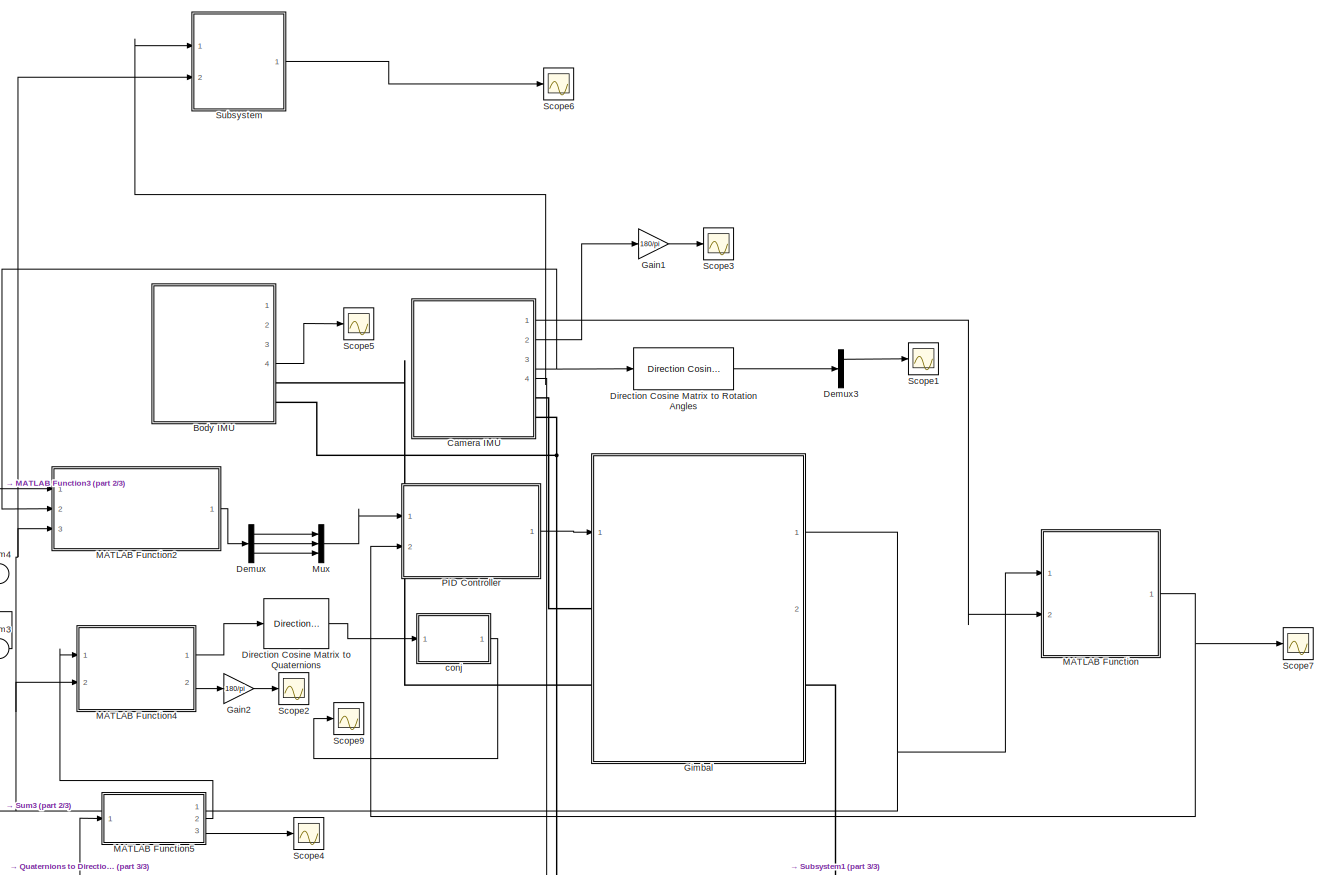
[diagram: root canvas - part 1/3, top center region]
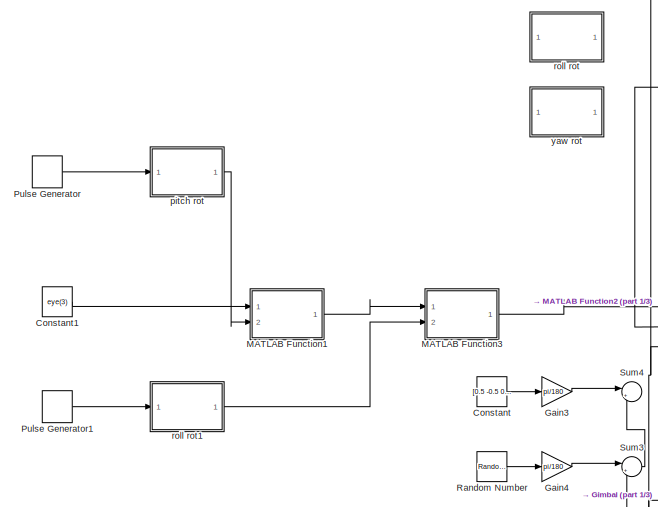
[diagram: root canvas - part 2/3, top left region]
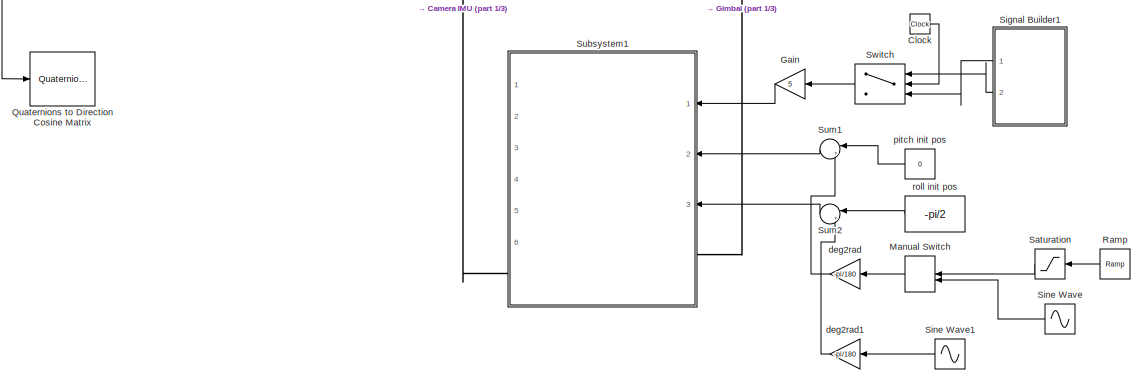
[diagram: root canvas - part 3/3, bottom center region]
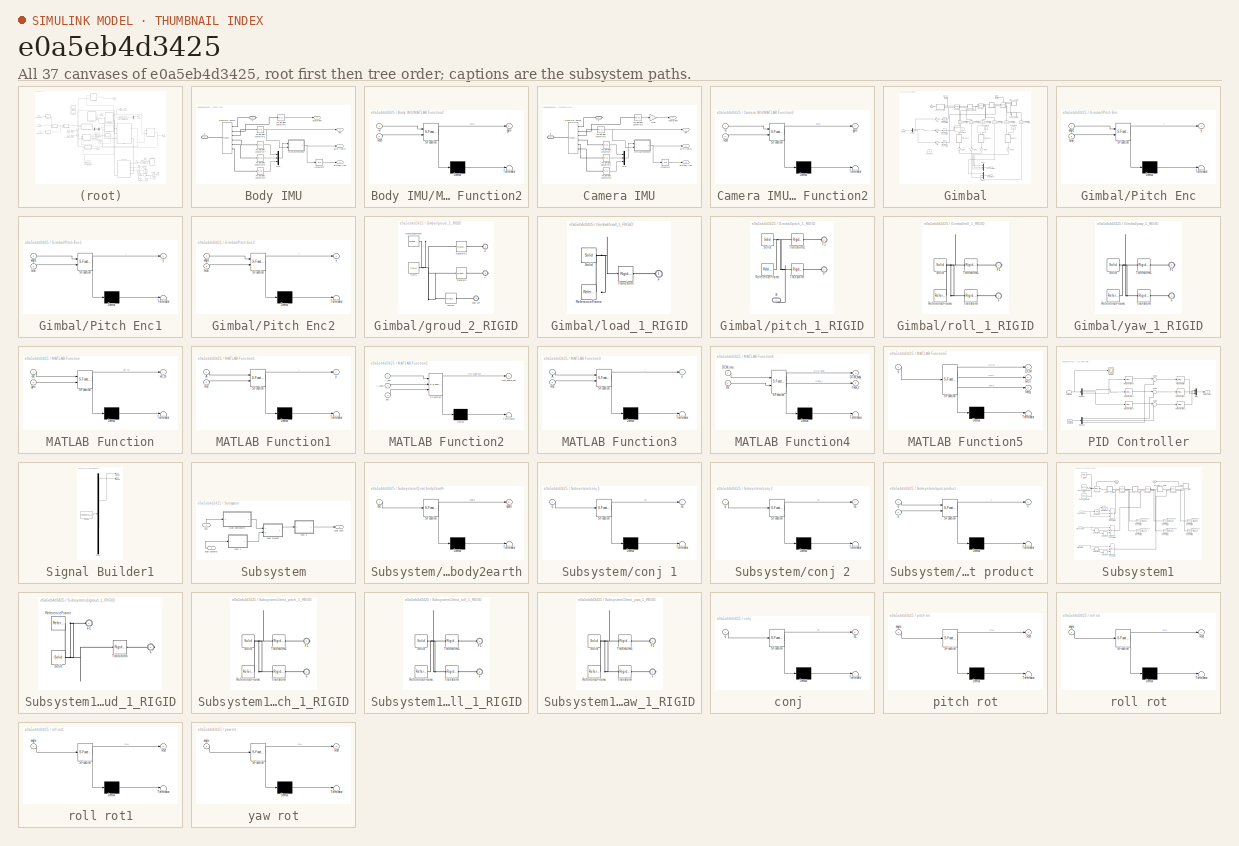
[diagram: thumbnail index - all 37 canvases of the model, root first then tree order]
MODEL slx_e0a5eb4d3425
KIND model
CONFIG AbsTol = auto
CONFIG EnableMultiTasking = on
CONFIG FixedStep = 0.001
CONFIG MaxStep = auto
CONFIG MinStep = auto
CONFIG RelTol = 1e-3
CONFIG SampleTimeConstraint = Unconstrained
CONFIG Solver = ode14x
CONFIG SolverName = ode14x
CONFIG StartTime = 0.0
CONFIG StopTime = 3
BLOCK [SubSystem] Body IMU
  Ports = [0, 4, 0, 0, 0, 0, 2]
  RequestExecContextInheritance = off
  Variant = off
BLOCK [PMIOPort] Body IMU/B
  Port = 2
  Side = Right
BLOCK [PMIOPort] Body IMU/F
  Port = 1
  Side = Right
BLOCK [Integrator] Body IMU/Integrator
  Ports = [1, 1]
BLOCK [SubSystem] Body IMU/MATLAB Function2
  ErrorFcn = Stateflow.Translate.translate
  PermitHierarchicalResolution = ExplicitOnly
  Ports = [2, 1]
  RequestExecContextInheritance = off
  SFBlockType = MATLAB Function
  TreatAsAtomicUnit = on
  Variant = off
BLOCK [Demux] Body IMU/MATLAB Function2/ Demux 
  Outputs = 1
  Ports = [1, 1]
BLOCK [S-Function] Body IMU/MATLAB Function2/ SFunction 
  EnableBusSupport = on
  FunctionName = sf_sfun
  PortCounts = [2 2]
  Ports = [2, 2]
  SFcnIsStateOwnerBlock = off
  SFunctionDeploymentMode = off
  Tag = Stateflow S-Function gimbal_test_2017_10_10 14
BLOCK [Terminator] Body IMU/MATLAB Function2/ Terminator 
BLOCK [Inport] Body IMU/MATLAB Function2/RM
  IconDisplay = Port number
  Port = 2
BLOCK [Outport] Body IMU/MATLAB Function2/gyro
  IconDisplay = Port number
BLOCK [Inport] Body IMU/MATLAB Function2/w
  IconDisplay = Port number
BLOCK [Mux] Body IMU/Mux
  DisplayOption = bar
  Inputs = 3
  Ports = [3, 1]
BLOCK [Reference] Body IMU/PS-Simulink Converter1  REF=nesl_utility/PS-Simulink
Converter
  Ports = [0, 1, 0, 0, 0, 1]
  SourceBlock = nesl_utility/PS-Simulink\nConverter
  SourceProductBaseCode = SS
  SourceProductName = Simscape
  SourceType = PS-Simulink\nConverter
BLOCK [Reference] Body IMU/PS-Simulink Converter6  REF=nesl_utility/PS-Simulink
Converter
  Ports = [0, 1, 0, 0, 0, 1]
  SourceBlock = nesl_utility/PS-Simulink\nConverter
  SourceProductBaseCode = SS
  SourceProductName = Simscape
  SourceType = PS-Simulink\nConverter
BLOCK [Reference] Body IMU/PS-Simulink Converter7  REF=nesl_utility/PS-Simulink
Converter
  Ports = [0, 1, 0, 0, 0, 1]
  SourceBlock = nesl_utility/PS-Simulink\nConverter
  SourceProductBaseCode = SS
  SourceProductName = Simscape
  SourceType = PS-Simulink\nConverter
BLOCK [Reference] Body IMU/PS-Simulink Converter8  REF=nesl_utility/PS-Simulink
Converter
  Ports = [0, 1, 0, 0, 0, 1]
  SourceBlock = nesl_utility/PS-Simulink\nConverter
  SourceProductBaseCode = SS
  SourceProductName = Simscape
  SourceType = PS-Simulink\nConverter
BLOCK [Reference] Body IMU/PS-Simulink Converter9  REF=nesl_utility/PS-Simulink
Converter
  Ports = [0, 1, 0, 0, 0, 1]
  SourceBlock = nesl_utility/PS-Simulink\nConverter
  SourceProductBaseCode = SS
  SourceProductName = Simscape
  SourceType = PS-Simulink\nConverter
BLOCK [Outport] Body IMU/RM
  IconDisplay = Port number
  Port = 3
BLOCK [Reference] Body IMU/Transform Sensor  REF=sm_lib/Frames and
Transforms/Transform
Sensor
  Ports = [0, 0, 0, 0, 0, 1, 6]
  SourceBlock = sm_lib/Frames and\nTransforms/Transform\nSensor
  SourceProductBaseCode = MS
  SourceProductName = Simscape Multibody
  SourceType = Transform\nSensor
BLOCK [Outport] Body IMU/attitude (rad)
  IconDisplay = Port number
  Port = 2
BLOCK [Outport] Body IMU/gyro (rad//s)
  IconDisplay = Port number
BLOCK [Outport] Body IMU/quaternion 
  IconDisplay = Port number
  Port = 4
BLOCK [SubSystem] Camera IMU
  Ports = [0, 4, 0, 0, 0, 0, 2]
  RequestExecContextInheritance = off
  Variant = off
BLOCK [PMIOPort] Camera IMU/B
  Port = 2
  Side = Right
BLOCK [PMIOPort] Camera IMU/F
  Port = 1
  Side = Right
BLOCK [Gain] Camera IMU/Gain
  Gain = -1
  OutDataTypeStr = Inherit: Inherit via internal rule
  ParamDataTypeStr = Inherit: Inherit via internal rule
  SaturateOnIntegerOverflow = off
BLOCK [Integrator] Camera IMU/Integrator
  Ports = [1, 1]
BLOCK [SubSystem] Camera IMU/MATLAB Function2
  ErrorFcn = Stateflow.Translate.translate
  PermitHierarchicalResolution = ExplicitOnly
  Ports = [2, 1]
  RequestExecContextInheritance = off
  SFBlockType = MATLAB Function
  TreatAsAtomicUnit = on
  Variant = off
BLOCK [Demux] Camera IMU/MATLAB Function2/ Demux 
  Outputs = 1
  Ports = [1, 1]
BLOCK [S-Function] Camera IMU/MATLAB Function2/ SFunction 
  EnableBusSupport = on
  FunctionName = sf_sfun
  PortCounts = [2 2]
  Ports = [2, 2]
  SFcnIsStateOwnerBlock = off
  SFunctionDeploymentMode = off
  Tag = Stateflow S-Function gimbal_test_2017_10_10 11
BLOCK [Terminator] Camera IMU/MATLAB Function2/ Terminator 
BLOCK [Inport] Camera IMU/MATLAB Function2/RM
  IconDisplay = Port number
  Port = 2
BLOCK [Outport] Camera IMU/MATLAB Function2/gyro
  IconDisplay = Port number
BLOCK [Inport] Camera IMU/MATLAB Function2/w
  IconDisplay = Port number
BLOCK [Mux] Camera IMU/Mux
  DisplayOption = bar
  Inputs = 3
  Ports = [3, 1]
BLOCK [Reference] Camera IMU/PS-Simulink Converter1  REF=nesl_utility/PS-Simulink
Converter
  Ports = [0, 1, 0, 0, 0, 1]
  SourceBlock = nesl_utility/PS-Simulink\nConverter
  SourceProductBaseCode = SS
  SourceProductName = Simscape
  SourceType = PS-Simulink\nConverter
BLOCK [Reference] Camera IMU/PS-Simulink Converter6  REF=nesl_utility/PS-Simulink
Converter
  Ports = [0, 1, 0, 0, 0, 1]
  SourceBlock = nesl_utility/PS-Simulink\nConverter
  SourceProductBaseCode = SS
  SourceProductName = Simscape
  SourceType = PS-Simulink\nConverter
BLOCK [Reference] Camera IMU/PS-Simulink Converter7  REF=nesl_utility/PS-Simulink
Converter
  Ports = [0, 1, 0, 0, 0, 1]
  SourceBlock = nesl_utility/PS-Simulink\nConverter
  SourceProductBaseCode = SS
  SourceProductName = Simscape
  SourceType = PS-Simulink\nConverter
BLOCK [Reference] Camera IMU/PS-Simulink Converter8  REF=nesl_utility/PS-Simulink
Converter
  Ports = [0, 1, 0, 0, 0, 1]
  SourceBlock = nesl_utility/PS-Simulink\nConverter
  SourceProductBaseCode = SS
  SourceProductName = Simscape
  SourceType = PS-Simulink\nConverter
BLOCK [Reference] Camera IMU/PS-Simulink Converter9  REF=nesl_utility/PS-Simulink
Converter
  Ports = [0, 1, 0, 0, 0, 1]
  SourceBlock = nesl_utility/PS-Simulink\nConverter
  SourceProductBaseCode = SS
  SourceProductName = Simscape
  SourceType = PS-Simulink\nConverter
BLOCK [Outport] Camera IMU/RM
  IconDisplay = Port number
  Port = 3
BLOCK [Reference] Camera IMU/Transform Sensor  REF=sm_lib/Frames and
Transforms/Transform
Sensor
  Ports = [0, 0, 0, 0, 0, 1, 6]
  SourceBlock = sm_lib/Frames and\nTransforms/Transform\nSensor
  SourceProductBaseCode = MS
  SourceProductName = Simscape Multibody
  SourceType = Transform\nSensor
BLOCK [Outport] Camera IMU/attitude (rad)
  IconDisplay = Port number
  Port = 2
BLOCK [Outport] Camera IMU/gyro (rad//s)
  IconDisplay = Port number
BLOCK [Outport] Camera IMU/quaternion 
  IconDisplay = Port number
  Port = 4
BLOCK [Clock] Clock
BLOCK [Constant] Constant
  Value = [0.5 -0.5 0.5]
BLOCK [Constant] Constant1
  Value = eye(3)
BLOCK [Demux] Demux
  DisplayOption = bar
  Outputs = 3
  Ports = [1, 3]
BLOCK [Demux] Demux3
  DisplayOption = bar
  Outputs = 3
  Ports = [1, 3]
BLOCK [Reference] Direction Cosine Matrix to Quaternions  REF=sharedtransform/Direction Cosine Matrix 
to Quaternions
  Ports = [1, 1]
  SourceBlock = sharedtransform/Direction Cosine Matrix \nto Quaternions
  SourceType = DCM2Quaternion
BLOCK [Reference] Direction Cosine Matrix to Rotation Angles  REF=sharedtransform/Direction Cosine Matrix
to Rotation Angles
  AttributesFormatString = Rotation Order: %<rotationOrder>
  Ports = [1, 1]
  SourceBlock = sharedtransform/Direction Cosine Matrix\nto Rotation Angles
  SourceType = DCM2Ang
BLOCK [Gain] Gain
  Gain = 5
  OutDataTypeStr = Inherit: Inherit via internal rule
  ParamDataTypeStr = Inherit: Inherit via internal rule
  SaturateOnIntegerOverflow = off
BLOCK [Gain] Gain1
  Gain = 180/pi
  OutDataTypeStr = Inherit: Inherit via internal rule
  ParamDataTypeStr = Inherit: Inherit via internal rule
  SaturateOnIntegerOverflow = off
BLOCK [Gain] Gain2
  Gain = 180/pi
  OutDataTypeStr = Inherit: Inherit via internal rule
  ParamDataTypeStr = Inherit: Inherit via internal rule
  SaturateOnIntegerOverflow = off
BLOCK [Gain] Gain3
  Gain = pi/180
  OutDataTypeStr = Inherit: Inherit via internal rule
  ParamDataTypeStr = Inherit: Inherit via internal rule
  SaturateOnIntegerOverflow = off
BLOCK [Gain] Gain4
  Gain = pi/180
  OutDataTypeStr = Inherit: Inherit via internal rule
  ParamDataTypeStr = Inherit: Inherit via internal rule
  SaturateOnIntegerOverflow = off
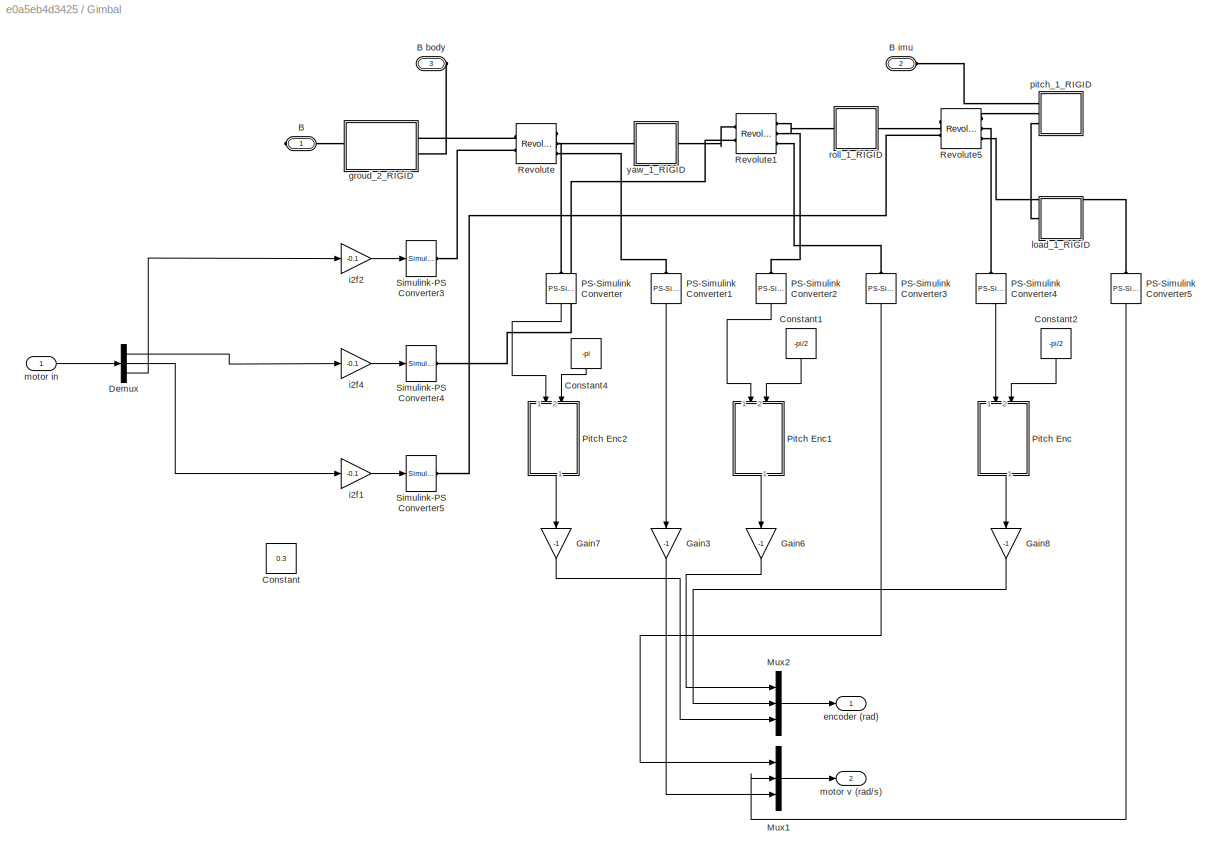
BLOCK [SubSystem] Gimbal
  Ports = [1, 2, 0, 0, 0, 2, 1]
  RequestExecContextInheritance = off
  Variant = off
BLOCK [PMIOPort] Gimbal/B
  Port = 1
  Side = Right
BLOCK [PMIOPort] Gimbal/B body
  Port = 3
  Side = Left
BLOCK [PMIOPort] Gimbal/B imu
  Port = 2
  Side = Left
BLOCK [Constant] Gimbal/Constant
  Value = 0.3
BLOCK [Constant] Gimbal/Constant1
  Value = -pi/2
BLOCK [Constant] Gimbal/Constant2
  Value = -pi/2
BLOCK [Constant] Gimbal/Constant4
  Value = -pi
BLOCK [Demux] Gimbal/Demux
  DisplayOption = bar
  Outputs = 3
  Ports = [1, 3]
BLOCK [Gain] Gimbal/Gain3
  Gain = -1
  OutDataTypeStr = Inherit: Inherit via internal rule
  ParamDataTypeStr = Inherit: Inherit via internal rule
  SaturateOnIntegerOverflow = off
BLOCK [Gain] Gimbal/Gain6
  Gain = -1
  OutDataTypeStr = Inherit: Inherit via internal rule
  ParamDataTypeStr = Inherit: Inherit via internal rule
  SaturateOnIntegerOverflow = off
BLOCK [Gain] Gimbal/Gain7
  Gain = -1
  OutDataTypeStr = Inherit: Inherit via internal rule
  ParamDataTypeStr = Inherit: Inherit via internal rule
  SaturateOnIntegerOverflow = off
BLOCK [Gain] Gimbal/Gain8
  Gain = -1
  OutDataTypeStr = Inherit: Inherit via internal rule
  ParamDataTypeStr = Inherit: Inherit via internal rule
  SaturateOnIntegerOverflow = off
BLOCK [Mux] Gimbal/Mux1
  DisplayOption = bar
  Inputs = 3
  Ports = [3, 1]
BLOCK [Mux] Gimbal/Mux2
  DisplayOption = bar
  Inputs = 3
  Ports = [3, 1]
BLOCK [Reference] Gimbal/PS-Simulink Converter  REF=nesl_utility/PS-Simulink
Converter
  Ports = [0, 1, 0, 0, 0, 1]
  SourceBlock = nesl_utility/PS-Simulink\nConverter
  SourceProductBaseCode = SS
  SourceProductName = Simscape
  SourceType = PS-Simulink\nConverter
BLOCK [Reference] Gimbal/PS-Simulink Converter1  REF=nesl_utility/PS-Simulink
Converter
  Ports = [0, 1, 0, 0, 0, 1]
  SourceBlock = nesl_utility/PS-Simulink\nConverter
  SourceProductBaseCode = SS
  SourceProductName = Simscape
  SourceType = PS-Simulink\nConverter
BLOCK [Reference] Gimbal/PS-Simulink Converter2  REF=nesl_utility/PS-Simulink
Converter
  Ports = [0, 1, 0, 0, 0, 1]
  SourceBlock = nesl_utility/PS-Simulink\nConverter
  SourceProductBaseCode = SS
  SourceProductName = Simscape
  SourceType = PS-Simulink\nConverter
BLOCK [Reference] Gimbal/PS-Simulink Converter3  REF=nesl_utility/PS-Simulink
Converter
  Ports = [0, 1, 0, 0, 0, 1]
  SourceBlock = nesl_utility/PS-Simulink\nConverter
  SourceProductBaseCode = SS
  SourceProductName = Simscape
  SourceType = PS-Simulink\nConverter
BLOCK [Reference] Gimbal/PS-Simulink Converter4  REF=nesl_utility/PS-Simulink
Converter
  Ports = [0, 1, 0, 0, 0, 1]
  SourceBlock = nesl_utility/PS-Simulink\nConverter
  SourceProductBaseCode = SS
  SourceProductName = Simscape
  SourceType = PS-Simulink\nConverter
BLOCK [Reference] Gimbal/PS-Simulink Converter5  REF=nesl_utility/PS-Simulink
Converter
  Ports = [0, 1, 0, 0, 0, 1]
  SourceBlock = nesl_utility/PS-Simulink\nConverter
  SourceProductBaseCode = SS
  SourceProductName = Simscape
  SourceType = PS-Simulink\nConverter
BLOCK [SubSystem] Gimbal/Pitch Enc
  ErrorFcn = Stateflow.Translate.translate
  PermitHierarchicalResolution = ExplicitOnly
  Ports = [2, 1]
  RequestExecContextInheritance = off
  SFBlockType = MATLAB Function
  TreatAsAtomicUnit = on
  Variant = off
BLOCK [Demux] Gimbal/Pitch Enc/ Demux 
  Outputs = 1
  Ports = [1, 1]
BLOCK [S-Function] Gimbal/Pitch Enc/ SFunction 
  EnableBusSupport = on
  FunctionName = sf_sfun
  PortCounts = [2 2]
  Ports = [2, 2]
  SFcnIsStateOwnerBlock = off
  SFunctionDeploymentMode = off
  Tag = Stateflow S-Function gimbal_test_2017_10_10 4
BLOCK [Terminator] Gimbal/Pitch Enc/ Terminator 
BLOCK [Inport] Gimbal/Pitch Enc/angle
  IconDisplay = Port number
BLOCK [Inport] Gimbal/Pitch Enc/bias
  IconDisplay = Port number
  Port = 2
BLOCK [Outport] Gimbal/Pitch Enc/y
  IconDisplay = Port number
BLOCK [SubSystem] Gimbal/Pitch Enc1
  ErrorFcn = Stateflow.Translate.translate
  PermitHierarchicalResolution = ExplicitOnly
  Ports = [2, 1]
  RequestExecContextInheritance = off
  SFBlockType = MATLAB Function
  TreatAsAtomicUnit = on
  Variant = off
BLOCK [Demux] Gimbal/Pitch Enc1/ Demux 
  Outputs = 1
  Ports = [1, 1]
BLOCK [S-Function] Gimbal/Pitch Enc1/ SFunction 
  EnableBusSupport = on
  FunctionName = sf_sfun
  PortCounts = [2 2]
  Ports = [2, 2]
  SFcnIsStateOwnerBlock = off
  SFunctionDeploymentMode = off
  Tag = Stateflow S-Function gimbal_test_2017_10_10 5
BLOCK [Terminator] Gimbal/Pitch Enc1/ Terminator 
BLOCK [Inport] Gimbal/Pitch Enc1/angle
  IconDisplay = Port number
BLOCK [Inport] Gimbal/Pitch Enc1/bias
  IconDisplay = Port number
  Port = 2
BLOCK [Outport] Gimbal/Pitch Enc1/y
  IconDisplay = Port number
BLOCK [SubSystem] Gimbal/Pitch Enc2
  ErrorFcn = Stateflow.Translate.translate
  PermitHierarchicalResolution = ExplicitOnly
  Ports = [2, 1]
  RequestExecContextInheritance = off
  SFBlockType = MATLAB Function
  TreatAsAtomicUnit = on
  Variant = off
BLOCK [Demux] Gimbal/Pitch Enc2/ Demux 
  Outputs = 1
  Ports = [1, 1]
BLOCK [S-Function] Gimbal/Pitch Enc2/ SFunction 
  EnableBusSupport = on
  FunctionName = sf_sfun
  PortCounts = [2 2]
  Ports = [2, 2]
  SFcnIsStateOwnerBlock = off
  SFunctionDeploymentMode = off
  Tag = Stateflow S-Function gimbal_test_2017_10_10 6
BLOCK [Terminator] Gimbal/Pitch Enc2/ Terminator 
BLOCK [Inport] Gimbal/Pitch Enc2/angle
  IconDisplay = Port number
BLOCK [Inport] Gimbal/Pitch Enc2/bias
  IconDisplay = Port number
  Port = 2
BLOCK [Outport] Gimbal/Pitch Enc2/y
  IconDisplay = Port number
BLOCK [Reference] Gimbal/Revolute  REF=sm_lib/Joints/Revolute Joint
  Ports = [0, 0, 0, 0, 0, 2, 3]
  SourceBlock = sm_lib/Joints/Revolute Joint
  SourceProductBaseCode = MS
  SourceProductName = Simscape Multibody
  SourceType = Revolute Joint
BLOCK [Reference] Gimbal/Revolute1  REF=sm_lib/Joints/Revolute Joint
  Ports = [0, 0, 0, 0, 0, 2, 3]
  SourceBlock = sm_lib/Joints/Revolute Joint
  SourceProductBaseCode = MS
  SourceProductName = Simscape Multibody
  SourceType = Revolute Joint
BLOCK [Reference] Gimbal/Revolute5  REF=sm_lib/Joints/Revolute Joint
  Ports = [0, 0, 0, 0, 0, 2, 3]
  SourceBlock = sm_lib/Joints/Revolute Joint
  SourceProductBaseCode = MS
  SourceProductName = Simscape Multibody
  SourceType = Revolute Joint
BLOCK [Reference] Gimbal/Simulink-PS Converter3  REF=nesl_utility/Simulink-PS
Converter
  Ports = [1, 0, 0, 0, 0, 0, 1]
  SourceBlock = nesl_utility/Simulink-PS\nConverter
  SourceProductBaseCode = SS
  SourceProductName = Simscape
  SourceType = Simulink-PS\nConverter
BLOCK [Reference] Gimbal/Simulink-PS Converter4  REF=nesl_utility/Simulink-PS
Converter
  Ports = [1, 0, 0, 0, 0, 0, 1]
  SourceBlock = nesl_utility/Simulink-PS\nConverter
  SourceProductBaseCode = SS
  SourceProductName = Simscape
  SourceType = Simulink-PS\nConverter
BLOCK [Reference] Gimbal/Simulink-PS Converter5  REF=nesl_utility/Simulink-PS
Converter
  Ports = [1, 0, 0, 0, 0, 0, 1]
  SourceBlock = nesl_utility/Simulink-PS\nConverter
  SourceProductBaseCode = SS
  SourceProductName = Simscape
  SourceType = Simulink-PS\nConverter
BLOCK [Outport] Gimbal/encoder (rad)
  IconDisplay = Port number
BLOCK [SubSystem] Gimbal/groud_2_RIGID
  Ports = [0, 0, 0, 0, 0, 1, 2]
  RequestExecContextInheritance = off
  Variant = off
BLOCK [PMIOPort] Gimbal/groud_2_RIGID/F
  Port = 2
  Side = Right
BLOCK [PMIOPort] Gimbal/groud_2_RIGID/F1
  Port = 1
  Side = Left
BLOCK [Reference] Gimbal/groud_2_RIGID/ReferenceFrame  REF=sm_lib/Frames and
Transforms/Reference
Frame
  Ports = [0, 0, 0, 0, 0, 0, 1]
  SourceBlock = sm_lib/Frames and\nTransforms/Reference\nFrame
  SourceProductBaseCode = MS
  SourceProductName = Simscape Multibody
  SourceType = Reference\nFrame
BLOCK [Reference] Gimbal/groud_2_RIGID/Solid  REF=sm_lib/Body Elements/Solid
  Ports = [0, 0, 0, 0, 0, 0, 1]
  SourceBlock = sm_lib/Body Elements/Solid
  SourceProductBaseCode = MS
  SourceProductName = Simscape Multibody
  SourceType = Solid
BLOCK [Reference] Gimbal/groud_2_RIGID/Transform  REF=sm_lib/Frames and
Transforms/Rigid
Transform
  Ports = [0, 0, 0, 0, 0, 1, 1]
  SourceBlock = sm_lib/Frames and\nTransforms/Rigid\nTransform
  SourceProductBaseCode = MS
  SourceProductName = Simscape Multibody
  SourceType = Rigid\nTransform
BLOCK [Reference] Gimbal/groud_2_RIGID/Transform1  REF=sm_lib/Frames and
Transforms/Rigid
Transform
  Ports = [0, 0, 0, 0, 0, 1, 1]
  SourceBlock = sm_lib/Frames and\nTransforms/Rigid\nTransform
  SourceProductBaseCode = MS
  SourceProductName = Simscape Multibody
  SourceType = Rigid\nTransform
BLOCK [PMIOPort] Gimbal/groud_2_RIGID/body att 
  Port = 3
  Side = Right
BLOCK [Reference] Gimbal/groud_2_RIGID/correct   REF=sm_lib/Frames and
Transforms/Rigid
Transform
  Ports = [0, 0, 0, 0, 0, 1, 1]
  SourceBlock = sm_lib/Frames and\nTransforms/Rigid\nTransform
  SourceProductBaseCode = MS
  SourceProductName = Simscape Multibody
  SourceType = Rigid\nTransform
BLOCK [Gain] Gimbal/i2f1
  Gain = -0.1
  OutDataTypeStr = Inherit: Inherit via internal rule
  ParamDataTypeStr = Inherit: Inherit via internal rule
  SaturateOnIntegerOverflow = off
BLOCK [Gain] Gimbal/i2f2
  Gain = -0.1
  OutDataTypeStr = Inherit: Inherit via internal rule
  ParamDataTypeStr = Inherit: Inherit via internal rule
  SaturateOnIntegerOverflow = off
BLOCK [Gain] Gimbal/i2f4
  Gain = -0.1
  OutDataTypeStr = Inherit: Inherit via internal rule
  ParamDataTypeStr = Inherit: Inherit via internal rule
  SaturateOnIntegerOverflow = off
BLOCK [SubSystem] Gimbal/load_1_RIGID
  Ports = [0, 0, 0, 0, 0, 1]
  RequestExecContextInheritance = off
  Variant = off
BLOCK [PMIOPort] Gimbal/load_1_RIGID/F
  Port = 1
  Side = Left
BLOCK [Reference] Gimbal/load_1_RIGID/ReferenceFrame  REF=sm_lib/Frames and
Transforms/Reference
Frame
  Ports = [0, 0, 0, 0, 0, 0, 1]
  SourceBlock = sm_lib/Frames and\nTransforms/Reference\nFrame
  SourceProductBaseCode = MS
  SourceProductName = Simscape Multibody
  SourceType = Reference\nFrame
BLOCK [Reference] Gimbal/load_1_RIGID/Solid  REF=sm_lib/Body Elements/Solid
  Ports = [0, 0, 0, 0, 0, 0, 1]
  SourceBlock = sm_lib/Body Elements/Solid
  SourceProductBaseCode = MS
  SourceProductName = Simscape Multibody
  SourceType = Solid
BLOCK [Reference] Gimbal/load_1_RIGID/Transform  REF=sm_lib/Frames and
Transforms/Rigid
Transform
  Ports = [0, 0, 0, 0, 0, 1, 1]
  SourceBlock = sm_lib/Frames and\nTransforms/Rigid\nTransform
  SourceProductBaseCode = MS
  SourceProductName = Simscape Multibody
  SourceType = Rigid\nTransform
BLOCK [Inport] Gimbal/motor in
  IconDisplay = Port number
BLOCK [Outport] Gimbal/motor v (rad//s)
  IconDisplay = Port number
  Port = 2
BLOCK [SubSystem] Gimbal/pitch_1_RIGID
  Ports = [0, 0, 0, 0, 0, 3]
  RequestExecContextInheritance = off
  Variant = off
BLOCK [PMIOPort] Gimbal/pitch_1_RIGID/B
  Port = 1
  Side = Left
BLOCK [PMIOPort] Gimbal/pitch_1_RIGID/F
  Port = 3
  Side = Left
BLOCK [PMIOPort] Gimbal/pitch_1_RIGID/F1
  Port = 2
  Side = Left
BLOCK [Reference] Gimbal/pitch_1_RIGID/ReferenceFrame  REF=sm_lib/Frames and
Transforms/Reference
Frame
  Ports = [0, 0, 0, 0, 0, 0, 1]
  SourceBlock = sm_lib/Frames and\nTransforms/Reference\nFrame
  SourceProductBaseCode = MS
  SourceProductName = Simscape Multibody
  SourceType = Reference\nFrame
BLOCK [Reference] Gimbal/pitch_1_RIGID/Solid  REF=sm_lib/Body Elements/Solid
  Ports = [0, 0, 0, 0, 0, 0, 1]
  SourceBlock = sm_lib/Body Elements/Solid
  SourceProductBaseCode = MS
  SourceProductName = Simscape Multibody
  SourceType = Solid
BLOCK [Reference] Gimbal/pitch_1_RIGID/Transform  REF=sm_lib/Frames and
Transforms/Rigid
Transform
  Ports = [0, 0, 0, 0, 0, 1, 1]
  SourceBlock = sm_lib/Frames and\nTransforms/Rigid\nTransform
  SourceProductBaseCode = MS
  SourceProductName = Simscape Multibody
  SourceType = Rigid\nTransform
BLOCK [Reference] Gimbal/pitch_1_RIGID/Transform1  REF=sm_lib/Frames and
Transforms/Rigid
Transform
  Ports = [0, 0, 0, 0, 0, 1, 1]
  SourceBlock = sm_lib/Frames and\nTransforms/Rigid\nTransform
  SourceProductBaseCode = MS
  SourceProductName = Simscape Multibody
  SourceType = Rigid\nTransform
BLOCK [SubSystem] Gimbal/roll_1_RIGID
  Ports = [0, 0, 0, 0, 0, 1, 1]
  RequestExecContextInheritance = off
  Variant = off
BLOCK [PMIOPort] Gimbal/roll_1_RIGID/F
  Port = 1
  Side = Left
BLOCK [PMIOPort] Gimbal/roll_1_RIGID/F1
  Port = 2
  Side = Right
BLOCK [Reference] Gimbal/roll_1_RIGID/ReferenceFrame  REF=sm_lib/Frames and
Transforms/Reference
Frame
  Ports = [0, 0, 0, 0, 0, 0, 1]
  SourceBlock = sm_lib/Frames and\nTransforms/Reference\nFrame
  SourceProductBaseCode = MS
  SourceProductName = Simscape Multibody
  SourceType = Reference\nFrame
BLOCK [Reference] Gimbal/roll_1_RIGID/Solid  REF=sm_lib/Body Elements/Solid
  Ports = [0, 0, 0, 0, 0, 0, 1]
  SourceBlock = sm_lib/Body Elements/Solid
  SourceProductBaseCode = MS
  SourceProductName = Simscape Multibody
  SourceType = Solid
BLOCK [Reference] Gimbal/roll_1_RIGID/Transform  REF=sm_lib/Frames and
Transforms/Rigid
Transform
  Ports = [0, 0, 0, 0, 0, 1, 1]
  SourceBlock = sm_lib/Frames and\nTransforms/Rigid\nTransform
  SourceProductBaseCode = MS
  SourceProductName = Simscape Multibody
  SourceType = Rigid\nTransform
BLOCK [Reference] Gimbal/roll_1_RIGID/Transform1  REF=sm_lib/Frames and
Transforms/Rigid
Transform
  Ports = [0, 0, 0, 0, 0, 1, 1]
  SourceBlock = sm_lib/Frames and\nTransforms/Rigid\nTransform
  SourceProductBaseCode = MS
  SourceProductName = Simscape Multibody
  SourceType = Rigid\nTransform
BLOCK [SubSystem] Gimbal/yaw_1_RIGID
  Ports = [0, 0, 0, 0, 0, 1, 1]
  RequestExecContextInheritance = off
  Variant = off
BLOCK [PMIOPort] Gimbal/yaw_1_RIGID/F
  Port = 1
  Side = Left
BLOCK [PMIOPort] Gimbal/yaw_1_RIGID/F1
  Port = 2
  Side = Right
BLOCK [Reference] Gimbal/yaw_1_RIGID/ReferenceFrame  REF=sm_lib/Frames and
Transforms/Reference
Frame
  Ports = [0, 0, 0, 0, 0, 0, 1]
  SourceBlock = sm_lib/Frames and\nTransforms/Reference\nFrame
  SourceProductBaseCode = MS
  SourceProductName = Simscape Multibody
  SourceType = Reference\nFrame
BLOCK [Reference] Gimbal/yaw_1_RIGID/Solid  REF=sm_lib/Body Elements/Solid
  Ports = [0, 0, 0, 0, 0, 0, 1]
  SourceBlock = sm_lib/Body Elements/Solid
  SourceProductBaseCode = MS
  SourceProductName = Simscape Multibody
  SourceType = Solid
BLOCK [Reference] Gimbal/yaw_1_RIGID/Transform  REF=sm_lib/Frames and
Transforms/Rigid
Transform
  Ports = [0, 0, 0, 0, 0, 1, 1]
  SourceBlock = sm_lib/Frames and\nTransforms/Rigid\nTransform
  SourceProductBaseCode = MS
  SourceProductName = Simscape Multibody
  SourceType = Rigid\nTransform
BLOCK [Reference] Gimbal/yaw_1_RIGID/Transform1  REF=sm_lib/Frames and
Transforms/Rigid
Transform
  Ports = [0, 0, 0, 0, 0, 1, 1]
  SourceBlock = sm_lib/Frames and\nTransforms/Rigid\nTransform
  SourceProductBaseCode = MS
  SourceProductName = Simscape Multibody
  SourceType = Rigid\nTransform
BLOCK [SubSystem] MATLAB Function
  ErrorFcn = Stateflow.Translate.translate
  PermitHierarchicalResolution = ExplicitOnly
  Ports = [2, 1]
  RequestExecContextInheritance = off
  SFBlockType = MATLAB Function
  TreatAsAtomicUnit = on
  Variant = off
BLOCK [Demux] MATLAB Function/ Demux 
  Outputs = 1
  Ports = [1, 1]
BLOCK [S-Function] MATLAB Function/ SFunction 
  EnableBusSupport = on
  FunctionName = sf_sfun
  PortCounts = [2 2]
  Ports = [2, 2]
  SFcnIsStateOwnerBlock = off
  SFunctionDeploymentMode = off
  Tag = Stateflow S-Function gimbal_test_2017_10_10 2
BLOCK [Terminator] MATLAB Function/ Terminator 
BLOCK [Inport] MATLAB Function/enc
  IconDisplay = Port number
BLOCK [Inport] MATLAB Function/gyro
  IconDisplay = Port number
  Port = 2
BLOCK [Outport] MATLAB Function/vel_fb
  IconDisplay = Port number
BLOCK [SubSystem] MATLAB Function1
  ErrorFcn = Stateflow.Translate.translate
  PermitHierarchicalResolution = ExplicitOnly
  Ports = [2, 1]
  RequestExecContextInheritance = off
  SFBlockType = MATLAB Function
  TreatAsAtomicUnit = on
  Variant = off
BLOCK [Demux] MATLAB Function1/ Demux 
  Outputs = 1
  Ports = [1, 1]
BLOCK [S-Function] MATLAB Function1/ SFunction 
  EnableBusSupport = on
  FunctionName = sf_sfun
  PortCounts = [2 2]
  Ports = [2, 2]
  SFcnIsStateOwnerBlock = off
  SFunctionDeploymentMode = off
  Tag = Stateflow S-Function gimbal_test_2017_10_10 1
BLOCK [Terminator] MATLAB Function1/ Terminator 
BLOCK [Inport] MATLAB Function1/A
  IconDisplay = Port number
BLOCK [Inport] MATLAB Function1/Rot
  IconDisplay = Port number
  Port = 2
BLOCK [Outport] MATLAB Function1/y
  IconDisplay = Port number
BLOCK [SubSystem] MATLAB Function2
  ErrorFcn = Stateflow.Translate.translate
  PermitHierarchicalResolution = ExplicitOnly
  Ports = [3, 1]
  RequestExecContextInheritance = off
  SFBlockType = MATLAB Function
  TreatAsAtomicUnit = on
  Variant = off
BLOCK [Demux] MATLAB Function2/ Demux 
  Outputs = 1
  Ports = [1, 1]
BLOCK [S-Function] MATLAB Function2/ SFunction 
  EnableBusSupport = on
  FunctionName = sf_sfun
  PortCounts = [3 2]
  Ports = [3, 2]
  SFcnIsStateOwnerBlock = off
  SFunctionDeploymentMode = off
  Tag = Stateflow S-Function gimbal_test_2017_10_10 12
BLOCK [Terminator] MATLAB Function2/ Terminator 
BLOCK [Inport] MATLAB Function2/A_dst
  IconDisplay = Port number
BLOCK [Inport] MATLAB Function2/A_now
  IconDisplay = Port number
  Port = 2
BLOCK [Inport] MATLAB Function2/enc
  IconDisplay = Port number
  Port = 3
BLOCK [Outport] MATLAB Function2/mot_angle_out
  IconDisplay = Port number
BLOCK [SubSystem] MATLAB Function3
  ErrorFcn = Stateflow.Translate.translate
  PermitHierarchicalResolution = ExplicitOnly
  Ports = [2, 1]
  RequestExecContextInheritance = off
  SFBlockType = MATLAB Function
  TreatAsAtomicUnit = on
  Variant = off
BLOCK [Demux] MATLAB Function3/ Demux 
  Outputs = 1
  Ports = [1, 1]
BLOCK [S-Function] MATLAB Function3/ SFunction 
  EnableBusSupport = on
  FunctionName = sf_sfun
  PortCounts = [2 2]
  Ports = [2, 2]
  SFcnIsStateOwnerBlock = off
  SFunctionDeploymentMode = off
  Tag = Stateflow S-Function gimbal_test_2017_10_10 8
BLOCK [Terminator] MATLAB Function3/ Terminator 
BLOCK [Inport] MATLAB Function3/A
  IconDisplay = Port number
BLOCK [Inport] MATLAB Function3/Rot
  IconDisplay = Port number
  Port = 2
BLOCK [Outport] MATLAB Function3/y
  IconDisplay = Port number
BLOCK [SubSystem] MATLAB Function4
  ErrorFcn = Stateflow.Translate.translate
  PermitHierarchicalResolution = ExplicitOnly
  Ports = [2, 2]
  RequestExecContextInheritance = off
  SFBlockType = MATLAB Function
  TreatAsAtomicUnit = on
  Variant = off
BLOCK [Demux] MATLAB Function4/ Demux 
  Outputs = 1
  Ports = [1, 1]
BLOCK [S-Function] MATLAB Function4/ SFunction 
  EnableBusSupport = on
  FunctionName = sf_sfun
  PortCounts = [2 3]
  Ports = [2, 3]
  SFcnIsStateOwnerBlock = off
  SFunctionDeploymentMode = off
  Tag = Stateflow S-Function gimbal_test_2017_10_10 13
BLOCK [Terminator] MATLAB Function4/ Terminator 
BLOCK [Outport] MATLAB Function4/DCM_body
  IconDisplay = Port number
BLOCK [Inport] MATLAB Function4/DCM_imu
  IconDisplay = Port number
BLOCK [Inport] MATLAB Function4/enc
  IconDisplay = Port number
  Port = 2
BLOCK [Outport] MATLAB Function4/track_z
  IconDisplay = Port number
  Port = 2
BLOCK [SubSystem] MATLAB Function5
  ErrorFcn = Stateflow.Translate.translate
  PermitHierarchicalResolution = ExplicitOnly
  Ports = [1, 3]
  RequestExecContextInheritance = off
  SFBlockType = MATLAB Function
  TreatAsAtomicUnit = on
  Variant = off
BLOCK [Demux] MATLAB Function5/ Demux 
  Outputs = 1
  Ports = [1, 1]
BLOCK [S-Function] MATLAB Function5/ SFunction 
  EnableBusSupport = on
  FunctionName = sf_sfun
  PortCounts = [1 4]
  Ports = [1, 4]
  SFcnIsStateOwnerBlock = off
  SFunctionDeploymentMode = off
  Tag = Stateflow S-Function gimbal_test_2017_10_10 15
BLOCK [Terminator] MATLAB Function5/ Terminator 
BLOCK [Outport] MATLAB Function5/DCM
  IconDisplay = Port number
BLOCK [Outport] MATLAB Function5/ROT
  IconDisplay = Port number
  Port = 2
BLOCK [Outport] MATLAB Function5/len_q
  IconDisplay = Port number
  Port = 3
BLOCK [Inport] MATLAB Function5/q
  IconDisplay = Port number
BLOCK [ManualSwitch] Manual Switch
  CurrentSetting = 0
BLOCK [Mux] Mux
  DisplayOption = bar
  Inputs = 3
  Ports = [3, 1]
BLOCK [SubSystem] PID Controller
  Ports = [2, 1]
  RequestExecContextInheritance = off
  TreatAsAtomicUnit = on
  Variant = off
BLOCK [Demux] PID Controller/Demux1
  DisplayOption = bar
  Outputs = 3
  Ports = [1, 3]
BLOCK [Demux] PID Controller/Demux2
  DisplayOption = bar
  Outputs = 3
  Ports = [1, 3]
BLOCK [Mux] PID Controller/Mux
  DisplayOption = bar
  Inputs = 3
  Ports = [3, 1]
BLOCK [Reference] PID Controller/PID Controller  REF=simulink/Continuous/PID Controller
  Ports = [1, 1]
  SourceBlock = simulink/Continuous/PID Controller
  SourceProductBaseCode = SL
  SourceProductName = Simulink
  SourceType = PID 1dof
BLOCK [Reference] PID Controller/PID Controller1  REF=simulink/Continuous/PID Controller
  Ports = [1, 1]
  SourceBlock = simulink/Continuous/PID Controller
  SourceProductBaseCode = SL
  SourceProductName = Simulink
  SourceType = PID 1dof
BLOCK [Reference] PID Controller/PID Controller2  REF=simulink/Continuous/PID Controller
  Ports = [1, 1]
  SourceBlock = simulink/Continuous/PID Controller
  SourceProductBaseCode = SL
  SourceProductName = Simulink
  SourceType = PID 1dof
BLOCK [Reference] PID Controller/PID Controller3  REF=simulink/Continuous/PID Controller
  Ports = [1, 1]
  SourceBlock = simulink/Continuous/PID Controller
  SourceProductBaseCode = SL
  SourceProductName = Simulink
  SourceType = PID 1dof
BLOCK [Reference] PID Controller/PID Controller4  REF=simulink/Continuous/PID Controller
  Ports = [1, 1]
  SourceBlock = simulink/Continuous/PID Controller
  SourceProductBaseCode = SL
  SourceProductName = Simulink
  SourceType = PID 1dof
BLOCK [Reference] PID Controller/PID Controller5  REF=simulink/Continuous/PID Controller
  Ports = [1, 1]
  SourceBlock = simulink/Continuous/PID Controller
  SourceProductBaseCode = SL
  SourceProductName = Simulink
  SourceType = PID 1dof
BLOCK [Scope] PID Controller/Scope
  NumInputPorts = 1
  Ports = [1]
  ScopeSpecificationString = Simulink.scopes.TimeScopeBlockCfg('CurrentConfiguration', extmgr.ConfigurationSet(extmgr.Configuration('Core','General UI',true),extmgr.Configuration('Core','Source UI',true),extmgr.Configuration('Sources','WiredSimulink',true,'DataLoggingVariableName','ScopeData2'),extmgr.Configuration('Visuals','Time Domain',true,'SerializedDisplays',{struct('MinYLimReal','-6.28994','MaxYLimReal','3.56319','YLab...<+1427ch>
BLOCK [Sum] PID Controller/Sum6
  IconShape = round
  InputSameDT = off
  Inputs = |+-
  OutDataTypeStr = Inherit: Inherit via internal rule
  Ports = [2, 1]
  SaturateOnIntegerOverflow = off
BLOCK [Sum] PID Controller/Sum7
  IconShape = round
  InputSameDT = off
  Inputs = |+-
  OutDataTypeStr = Inherit: Inherit via internal rule
  Ports = [2, 1]
  SaturateOnIntegerOverflow = off
BLOCK [Sum] PID Controller/Sum8
  IconShape = round
  InputSameDT = off
  Inputs = |+-
  OutDataTypeStr = Inherit: Inherit via internal rule
  Ports = [2, 1]
  SaturateOnIntegerOverflow = off
BLOCK [Inport] PID Controller/angle v fb
  IconDisplay = Port number
  Port = 2
BLOCK [Inport] PID Controller/mot angle
  IconDisplay = Port number
BLOCK [Outport] PID Controller/motor value
  IconDisplay = Port number
BLOCK [DiscretePulseGenerator] Pulse Generator
  Amplitude = pi/4
  Period = 3
  Ports = [0, 1]
  PulseType = Time based
  PulseWidth = 50
BLOCK [DiscretePulseGenerator] Pulse Generator1
  Amplitude = pi/6
  Ports = [0, 1]
  PulseType = Time based
  PulseWidth = 50
BLOCK [Reference] Quaternions to Direction Cosine Matrix  REF=sharedtransform/Quaternions to 
Direction Cosine Matrix
  Ports = [1, 1]
  SourceBlock = sharedtransform/Quaternions to \nDirection Cosine Matrix
  SourceType = Quaternion2DCM
BLOCK [Reference] Ramp  REF=simulink/Sources/Ramp
  Ports = [0, 1]
  SourceBlock = simulink/Sources/Ramp
  SourceProductBaseCode = SL
  SourceProductName = Simulink
  SourceType = Ramp
BLOCK [RandomNumber] Random Number
  SampleTime = 0.001
  Variance = 0.01
BLOCK [Saturate] Saturation
  InputPortMap = u0
  LowerLimit = -70
  Ports = [1, 1]
  UpperLimit = 80
BLOCK [Scope] Scope1
  NumInputPorts = 1
  Ports = [1]
  ScopeSpecificationString = Simulink.scopes.TimeScopeBlockCfg('CurrentConfiguration', extmgr.ConfigurationSet(extmgr.Configuration('Core','General UI',true),extmgr.Configuration('Core','Source UI',true),extmgr.Configuration('Sources','WiredSimulink',true,'DataLoggingVariableName','ScopeData3'),extmgr.Configuration('Visuals','Time Domain',true,'SerializedDisplays',{struct('MinYLimReal','-0.01471','MaxYLimReal','0.01408','YLab...<+1415ch>
BLOCK [Scope] Scope2
  NumInputPorts = 1
  Ports = [1]
  ScopeSpecificationString = Simulink.scopes.TimeScopeBlockCfg('CurrentConfiguration', extmgr.ConfigurationSet(extmgr.Configuration('Core','General UI',true),extmgr.Configuration('Core','Source UI',true),extmgr.Configuration('Sources','WiredSimulink',true,'DataLoggingVariableName','ScopeData1'),extmgr.Configuration('Visuals','Time Domain',true,'SerializedDisplays',{struct('MinYLimReal','-96.68663','MaxYLimReal','10.74296','YL...<+1418ch>
BLOCK [Scope] Scope3
  NumInputPorts = 1
  Ports = [1]
  ScopeSpecificationString = Simulink.scopes.TimeScopeBlockCfg('CurrentConfiguration', extmgr.ConfigurationSet(extmgr.Configuration('Core','General UI',true),extmgr.Configuration('Core','Source UI',true),extmgr.Configuration('Sources','WiredSimulink',true,'DataLoggingVariableName','ScopeData1'),extmgr.Configuration('Visuals','Time Domain',true,'SerializedDisplays',{struct('MinYLimReal','-92.36131','MaxYLimReal','64.7575','YLa...<+1438ch>
BLOCK [Scope] Scope4
  NumInputPorts = 1
  Ports = [1]
  ScopeSpecificationString = Simulink.scopes.TimeScopeBlockCfg('CurrentConfiguration', extmgr.ConfigurationSet(extmgr.Configuration('Core','General UI',true),extmgr.Configuration('Core','Source UI',true),extmgr.Configuration('Sources','WiredSimulink',true,'DataLoggingVariableName','ScopeData2'),extmgr.Configuration('Visuals','Time Domain',true,'SerializedDisplays',{struct('MinYLimReal','0.00000','MaxYLimReal','2.00000','YLabe...<+1427ch>
BLOCK [Scope] Scope5
  NumInputPorts = 1
  Ports = [1]
  ScopeSpecificationString = Simulink.scopes.TimeScopeBlockCfg('CurrentConfiguration', extmgr.ConfigurationSet(extmgr.Configuration('Core','General UI',true),extmgr.Configuration('Core','Source UI',true),extmgr.Configuration('Sources','WiredSimulink',true,'DataLoggingVariableName','ScopeData1'),extmgr.Configuration('Visuals','Time Domain',true,'SerializedDisplays',{struct('MinYLimReal','-0.90184','MaxYLimReal','1.21132','YLab...<+1463ch>
BLOCK [Scope] Scope6
  NumInputPorts = 1
  Ports = [1]
  ScopeSpecificationString = Simulink.scopes.TimeScopeBlockCfg('CurrentConfiguration', extmgr.ConfigurationSet(extmgr.Configuration('Core','General UI',true),extmgr.Configuration('Core','Source UI',true),extmgr.Configuration('Sources','WiredSimulink',true,'DataLoggingVariableName','ScopeData2'),extmgr.Configuration('Visuals','Time Domain',true,'SerializedDisplays',{struct('MinYLimReal','-0.90184','MaxYLimReal','1.21132','YLab...<+1448ch>
BLOCK [Scope] Scope7
  NumInputPorts = 1
  Ports = [1]
  ScopeSpecificationString = Simulink.scopes.TimeScopeBlockCfg('CurrentConfiguration', extmgr.ConfigurationSet(extmgr.Configuration('Core','General UI',true),extmgr.Configuration('Core','Source UI',true),extmgr.Configuration('Sources','WiredSimulink',true,'DataLoggingVariableName','ScopeData15'),extmgr.Configuration('Visuals','Time Domain',true,'SerializedDisplays',{struct('MinYLimReal','-9.72741','MaxYLimReal','30.13076','YL...<+1469ch>
BLOCK [Scope] Scope9
  NumInputPorts = 1
  Ports = [1]
  ScopeSpecificationString = Simulink.scopes.TimeScopeBlockCfg('CurrentConfiguration', extmgr.ConfigurationSet(extmgr.Configuration('Core','General UI',true),extmgr.Configuration('Core','Source UI',true),extmgr.Configuration('Sources','WiredSimulink',true,'DataLoggingVariableName','ScopeData1'),extmgr.Configuration('Visuals','Time Domain',true,'SerializedDisplays',{struct('MinYLimReal','-0.90184','MaxYLimReal','1.21132','YLab...<+1444ch>
BLOCK [SubSystem] Signal Builder1
  ClipboardFcn = sigbuilder_block('clipboard');
  CloseFcn = sigbuilder_block('close');
  ContinueFcn = sigbuilder_block('continue');
  CopyFcn = sigbuilder_block('copy');
  DeleteFcn = sigbuilder_block('delete');
  LoadFcn = sigbuilder_block('load');
  MaskHideContents = on
  ModelCloseFcn = sigbuilder_block('modelClose');
  NameChangeFcn = sigbuilder_block('namechange');
  OpenFcn = sigbuilder_block('open',[6 33 1188 541.5 ]);
  PauseFcn = sigbuilder_block('pause');
  Ports = [0, 2]
  PreSaveFcn = sigbuilder_block('preSave');
  RequestExecContextInheritance = off
  StartFcn = sigbuilder_block('start');
  StopFcn = sigbuilder_block('stop');
  Tag = STV Subsys
  Variant = off
BLOCK [Demux] Signal Builder1/Demux
  Outputs = 2
  Ports = [1, 2]
  Tag = STV Demux
BLOCK [FromWorkspace] Signal Builder1/FromWs
  SampleTime = 0
  Tag = STV FromWs
  VariableName = tuvar
  ZeroCross = on
BLOCK [Outport] Signal Builder1/Signal 1
  IconDisplay = Port number
  Tag = STV Outport
BLOCK [Outport] Signal Builder1/Signal 2
  IconDisplay = Port number
  Port = 2
  Tag = STV Outport
BLOCK [Sin] Sine Wave
  Amplitude = 50
  Frequency = 2
  Ports = [0, 1]
  SampleTime = 0
BLOCK [Sin] Sine Wave1
  Amplitude = 60
  Frequency = 1.7
  Ports = [0, 1]
  SampleTime = 0
BLOCK [SubSystem] Subsystem
  Ports = [2, 1]
  RequestExecContextInheritance = off
  Variant = off
BLOCK [SubSystem] Subsystem/Quat body2earth
  ErrorFcn = Stateflow.Translate.translate
  PermitHierarchicalResolution = ExplicitOnly
  Ports = [1, 1]
  RequestExecContextInheritance = off
  SFBlockType = MATLAB Function
  TreatAsAtomicUnit = on
  Variant = off
BLOCK [Demux] Subsystem/Quat body2earth/ Demux 
  Outputs = 1
  Ports = [1, 1]
BLOCK [S-Function] Subsystem/Quat body2earth/ SFunction 
  EnableBusSupport = on
  FunctionName = sf_sfun
  PortCounts = [1 2]
  Ports = [1, 2]
  SFcnIsStateOwnerBlock = off
  SFunctionDeploymentMode = off
  Tag = Stateflow S-Function gimbal_test_2017_10_10 16
BLOCK [Terminator] Subsystem/Quat body2earth/ Terminator 
BLOCK [Inport] Subsystem/Quat body2earth/enc
  IconDisplay = Port number
BLOCK [Outport] Subsystem/Quat body2earth/quatb
  IconDisplay = Port number
BLOCK [SubSystem] Subsystem/conj 1
  ErrorFcn = Stateflow.Translate.translate
  PermitHierarchicalResolution = ExplicitOnly
  Ports = [1, 1]
  RequestExecContextInheritance = off
  SFBlockType = MATLAB Function
  TreatAsAtomicUnit = on
  Variant = off
BLOCK [Demux] Subsystem/conj 1/ Demux 
  Outputs = 1
  Ports = [1, 1]
BLOCK [S-Function] Subsystem/conj 1/ SFunction 
  EnableBusSupport = on
  FunctionName = sf_sfun
  PortCounts = [1 2]
  Ports = [1, 2]
  SFcnIsStateOwnerBlock = off
  SFunctionDeploymentMode = off
  Tag = Stateflow S-Function gimbal_test_2017_10_10 19
BLOCK [Terminator] Subsystem/conj 1/ Terminator 
BLOCK [Outport] Subsystem/conj 1/cq
  IconDisplay = Port number
BLOCK [Inport] Subsystem/conj 1/q
  IconDisplay = Port number
BLOCK [SubSystem] Subsystem/conj 2
  ErrorFcn = Stateflow.Translate.translate
  PermitHierarchicalResolution = ExplicitOnly
  Ports = [1, 1]
  RequestExecContextInheritance = off
  SFBlockType = MATLAB Function
  TreatAsAtomicUnit = on
  Variant = off
BLOCK [Demux] Subsystem/conj 2/ Demux 
  Outputs = 1
  Ports = [1, 1]
BLOCK [S-Function] Subsystem/conj 2/ SFunction 
  EnableBusSupport = on
  FunctionName = sf_sfun
  PortCounts = [1 2]
  Ports = [1, 2]
  SFcnIsStateOwnerBlock = off
  SFunctionDeploymentMode = off
  Tag = Stateflow S-Function gimbal_test_2017_10_10 20
BLOCK [Terminator] Subsystem/conj 2/ Terminator 
BLOCK [Outport] Subsystem/conj 2/cq
  IconDisplay = Port number
BLOCK [Inport] Subsystem/conj 2/q
  IconDisplay = Port number
BLOCK [Inport] Subsystem/enc
  IconDisplay = Port number
  Port = 2
BLOCK [Outport] Subsystem/quat body
  IconDisplay = Port number
BLOCK [Inport] Subsystem/quat camera
  IconDisplay = Port number
BLOCK [SubSystem] Subsystem/quat product 
  ErrorFcn = Stateflow.Translate.translate
  PermitHierarchicalResolution = ExplicitOnly
  Ports = [2, 1]
  RequestExecContextInheritance = off
  SFBlockType = MATLAB Function
  TreatAsAtomicUnit = on
  Variant = off
BLOCK [Demux] Subsystem/quat product / Demux 
  Outputs = 1
  Ports = [1, 1]
BLOCK [S-Function] Subsystem/quat product / SFunction 
  EnableBusSupport = on
  FunctionName = sf_sfun
  PortCounts = [2 2]
  Ports = [2, 2]
  SFcnIsStateOwnerBlock = off
  SFunctionDeploymentMode = off
  Tag = Stateflow S-Function gimbal_test_2017_10_10 17
BLOCK [Terminator] Subsystem/quat product / Terminator 
BLOCK [Inport] Subsystem/quat product /a
  IconDisplay = Port number
BLOCK [Inport] Subsystem/quat product /b
  IconDisplay = Port number
  Port = 2
BLOCK [Outport] Subsystem/quat product /c
  IconDisplay = Port number
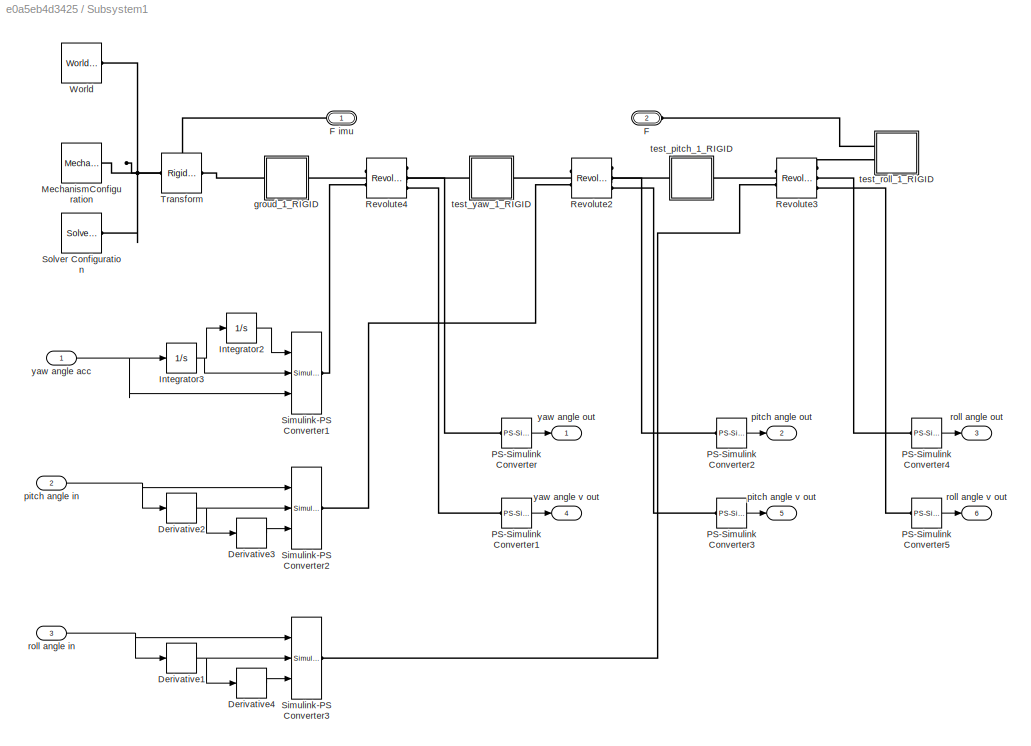
BLOCK [SubSystem] Subsystem1
  Ports = [3, 6, 0, 0, 0, 1, 1]
  RequestExecContextInheritance = off
  Variant = off
BLOCK [Derivative] Subsystem1/Derivative1
BLOCK [Derivative] Subsystem1/Derivative2
BLOCK [Derivative] Subsystem1/Derivative3
BLOCK [Derivative] Subsystem1/Derivative4
BLOCK [PMIOPort] Subsystem1/F
  Port = 2
  Side = Left
BLOCK [PMIOPort] Subsystem1/F imu 
  Port = 1
  Side = Right
BLOCK [Integrator] Subsystem1/Integrator2
  Ports = [1, 1]
BLOCK [Integrator] Subsystem1/Integrator3
  Ports = [1, 1]
BLOCK [Reference] Subsystem1/MechanismConfiguration  REF=sm_lib/Utilities/Mechanism
Configuration
  Ports = [0, 0, 0, 0, 0, 0, 1]
  SourceBlock = sm_lib/Utilities/Mechanism\nConfiguration
  SourceProductBaseCode = MS
  SourceProductName = Simscape Multibody
  SourceType = Mechanism\nConfiguration
BLOCK [Reference] Subsystem1/PS-Simulink Converter  REF=nesl_utility/PS-Simulink
Converter
  Ports = [0, 1, 0, 0, 0, 1]
  SourceBlock = nesl_utility/PS-Simulink\nConverter
  SourceProductBaseCode = SS
  SourceProductName = Simscape
  SourceType = PS-Simulink\nConverter
BLOCK [Reference] Subsystem1/PS-Simulink Converter1  REF=nesl_utility/PS-Simulink
Converter
  Ports = [0, 1, 0, 0, 0, 1]
  SourceBlock = nesl_utility/PS-Simulink\nConverter
  SourceProductBaseCode = SS
  SourceProductName = Simscape
  SourceType = PS-Simulink\nConverter
BLOCK [Reference] Subsystem1/PS-Simulink Converter2  REF=nesl_utility/PS-Simulink
Converter
  Ports = [0, 1, 0, 0, 0, 1]
  SourceBlock = nesl_utility/PS-Simulink\nConverter
  SourceProductBaseCode = SS
  SourceProductName = Simscape
  SourceType = PS-Simulink\nConverter
BLOCK [Reference] Subsystem1/PS-Simulink Converter3  REF=nesl_utility/PS-Simulink
Converter
  Ports = [0, 1, 0, 0, 0, 1]
  SourceBlock = nesl_utility/PS-Simulink\nConverter
  SourceProductBaseCode = SS
  SourceProductName = Simscape
  SourceType = PS-Simulink\nConverter
BLOCK [Reference] Subsystem1/PS-Simulink Converter4  REF=nesl_utility/PS-Simulink
Converter
  Ports = [0, 1, 0, 0, 0, 1]
  SourceBlock = nesl_utility/PS-Simulink\nConverter
  SourceProductBaseCode = SS
  SourceProductName = Simscape
  SourceType = PS-Simulink\nConverter
BLOCK [Reference] Subsystem1/PS-Simulink Converter5  REF=nesl_utility/PS-Simulink
Converter
  Ports = [0, 1, 0, 0, 0, 1]
  SourceBlock = nesl_utility/PS-Simulink\nConverter
  SourceProductBaseCode = SS
  SourceProductName = Simscape
  SourceType = PS-Simulink\nConverter
BLOCK [Reference] Subsystem1/Revolute2  REF=sm_lib/Joints/Revolute Joint
  Ports = [0, 0, 0, 0, 0, 2, 3]
  SourceBlock = sm_lib/Joints/Revolute Joint
  SourceProductBaseCode = MS
  SourceProductName = Simscape Multibody
  SourceType = Revolute Joint
BLOCK [Reference] Subsystem1/Revolute3  REF=sm_lib/Joints/Revolute Joint
  Ports = [0, 0, 0, 0, 0, 2, 3]
  SourceBlock = sm_lib/Joints/Revolute Joint
  SourceProductBaseCode = MS
  SourceProductName = Simscape Multibody
  SourceType = Revolute Joint
BLOCK [Reference] Subsystem1/Revolute4  REF=sm_lib/Joints/Revolute Joint
  Ports = [0, 0, 0, 0, 0, 2, 3]
  SourceBlock = sm_lib/Joints/Revolute Joint
  SourceProductBaseCode = MS
  SourceProductName = Simscape Multibody
  SourceType = Revolute Joint
BLOCK [Reference] Subsystem1/Simulink-PS Converter1  REF=nesl_utility/Simulink-PS
Converter
  Ports = [3, 0, 0, 0, 0, 0, 1]
  SourceBlock = nesl_utility/Simulink-PS\nConverter
  SourceProductBaseCode = SS
  SourceProductName = Simscape
  SourceType = Simulink-PS\nConverter
BLOCK [Reference] Subsystem1/Simulink-PS Converter2  REF=nesl_utility/Simulink-PS
Converter
  Ports = [3, 0, 0, 0, 0, 0, 1]
  SourceBlock = nesl_utility/Simulink-PS\nConverter
  SourceProductBaseCode = SS
  SourceProductName = Simscape
  SourceType = Simulink-PS\nConverter
BLOCK [Reference] Subsystem1/Simulink-PS Converter3  REF=nesl_utility/Simulink-PS
Converter
  Ports = [3, 0, 0, 0, 0, 0, 1]
  SourceBlock = nesl_utility/Simulink-PS\nConverter
  SourceProductBaseCode = SS
  SourceProductName = Simscape
  SourceType = Simulink-PS\nConverter
BLOCK [Reference] Subsystem1/Solver Configuration  REF=nesl_utility/Solver
Configuration
  Ports = [0, 0, 0, 0, 0, 0, 1]
  SourceBlock = nesl_utility/Solver\nConfiguration
  SourceProductBaseCode = SS
  SourceProductName = Simscape
  SourceType = Solver\nConfiguration
BLOCK [Reference] Subsystem1/Transform  REF=sm_lib/Frames and
Transforms/Rigid
Transform
  Ports = [0, 0, 0, 0, 0, 1, 1]
  SourceBlock = sm_lib/Frames and\nTransforms/Rigid\nTransform
  SourceProductBaseCode = MS
  SourceProductName = Simscape Multibody
  SourceType = Rigid\nTransform
BLOCK [Reference] Subsystem1/World  REF=sm_lib/Frames and
Transforms/World Frame
  Ports = [0, 0, 0, 0, 0, 0, 1]
  SourceBlock = sm_lib/Frames and\nTransforms/World Frame
  SourceProductBaseCode = MS
  SourceProductName = Simscape Multibody
  SourceType = World Frame
BLOCK [SubSystem] Subsystem1/groud_1_RIGID
  Ports = [0, 0, 0, 0, 0, 1, 1]
  RequestExecContextInheritance = off
  Variant = off
BLOCK [PMIOPort] Subsystem1/groud_1_RIGID/F
  Port = 2
  Side = Right
BLOCK [PMIOPort] Subsystem1/groud_1_RIGID/F1
  Port = 1
  Side = Left
BLOCK [Reference] Subsystem1/groud_1_RIGID/ReferenceFrame  REF=sm_lib/Frames and
Transforms/Reference
Frame
  Ports = [0, 0, 0, 0, 0, 0, 1]
  SourceBlock = sm_lib/Frames and\nTransforms/Reference\nFrame
  SourceProductBaseCode = MS
  SourceProductName = Simscape Multibody
  SourceType = Reference\nFrame
BLOCK [Reference] Subsystem1/groud_1_RIGID/Solid  REF=sm_lib/Body Elements/Solid
  Ports = [0, 0, 0, 0, 0, 0, 1]
  SourceBlock = sm_lib/Body Elements/Solid
  SourceProductBaseCode = MS
  SourceProductName = Simscape Multibody
  SourceType = Solid
BLOCK [Reference] Subsystem1/groud_1_RIGID/Transform  REF=sm_lib/Frames and
Transforms/Rigid
Transform
  Ports = [0, 0, 0, 0, 0, 1, 1]
  SourceBlock = sm_lib/Frames and\nTransforms/Rigid\nTransform
  SourceProductBaseCode = MS
  SourceProductName = Simscape Multibody
  SourceType = Rigid\nTransform
BLOCK [Inport] Subsystem1/pitch angle in
  IconDisplay = Port number
  Port = 2
BLOCK [Outport] Subsystem1/pitch angle out
  IconDisplay = Port number
  Port = 2
BLOCK [Outport] Subsystem1/pitch angle v out
  IconDisplay = Port number
  Port = 5
BLOCK [Inport] Subsystem1/roll angle in
  IconDisplay = Port number
  Port = 3
BLOCK [Outport] Subsystem1/roll angle out
  IconDisplay = Port number
  Port = 3
BLOCK [Outport] Subsystem1/roll angle v out
  IconDisplay = Port number
  Port = 6
BLOCK [SubSystem] Subsystem1/test_pitch_1_RIGID
  Ports = [0, 0, 0, 0, 0, 1, 1]
  RequestExecContextInheritance = off
  Variant = off
BLOCK [PMIOPort] Subsystem1/test_pitch_1_RIGID/F
  Port = 1
  Side = Left
BLOCK [PMIOPort] Subsystem1/test_pitch_1_RIGID/F1
  Port = 2
  Side = Right
BLOCK [Reference] Subsystem1/test_pitch_1_RIGID/ReferenceFrame  REF=sm_lib/Frames and
Transforms/Reference
Frame
  Ports = [0, 0, 0, 0, 0, 0, 1]
  SourceBlock = sm_lib/Frames and\nTransforms/Reference\nFrame
  SourceProductBaseCode = MS
  SourceProductName = Simscape Multibody
  SourceType = Reference\nFrame
BLOCK [Reference] Subsystem1/test_pitch_1_RIGID/Solid  REF=sm_lib/Body Elements/Solid
  Ports = [0, 0, 0, 0, 0, 0, 1]
  SourceBlock = sm_lib/Body Elements/Solid
  SourceProductBaseCode = MS
  SourceProductName = Simscape Multibody
  SourceType = Solid
BLOCK [Reference] Subsystem1/test_pitch_1_RIGID/Transform  REF=sm_lib/Frames and
Transforms/Rigid
Transform
  Ports = [0, 0, 0, 0, 0, 1, 1]
  SourceBlock = sm_lib/Frames and\nTransforms/Rigid\nTransform
  SourceProductBaseCode = MS
  SourceProductName = Simscape Multibody
  SourceType = Rigid\nTransform
BLOCK [Reference] Subsystem1/test_pitch_1_RIGID/Transform1  REF=sm_lib/Frames and
Transforms/Rigid
Transform
  Ports = [0, 0, 0, 0, 0, 1, 1]
  SourceBlock = sm_lib/Frames and\nTransforms/Rigid\nTransform
  SourceProductBaseCode = MS
  SourceProductName = Simscape Multibody
  SourceType = Rigid\nTransform
BLOCK [SubSystem] Subsystem1/test_roll_1_RIGID
  Ports = [0, 0, 0, 0, 0, 2]
  RequestExecContextInheritance = off
  Variant = off
BLOCK [PMIOPort] Subsystem1/test_roll_1_RIGID/F
  Port = 2
  Side = Left
BLOCK [PMIOPort] Subsystem1/test_roll_1_RIGID/F1
  Port = 1
  Side = Left
BLOCK [Reference] Subsystem1/test_roll_1_RIGID/ReferenceFrame  REF=sm_lib/Frames and
Transforms/Reference
Frame
  Ports = [0, 0, 0, 0, 0, 0, 1]
  SourceBlock = sm_lib/Frames and\nTransforms/Reference\nFrame
  SourceProductBaseCode = MS
  SourceProductName = Simscape Multibody
  SourceType = Reference\nFrame
BLOCK [Reference] Subsystem1/test_roll_1_RIGID/Solid  REF=sm_lib/Body Elements/Solid
  Ports = [0, 0, 0, 0, 0, 0, 1]
  SourceBlock = sm_lib/Body Elements/Solid
  SourceProductBaseCode = MS
  SourceProductName = Simscape Multibody
  SourceType = Solid
BLOCK [Reference] Subsystem1/test_roll_1_RIGID/Transform  REF=sm_lib/Frames and
Transforms/Rigid
Transform
  Ports = [0, 0, 0, 0, 0, 1, 1]
  SourceBlock = sm_lib/Frames and\nTransforms/Rigid\nTransform
  SourceProductBaseCode = MS
  SourceProductName = Simscape Multibody
  SourceType = Rigid\nTransform
BLOCK [Reference] Subsystem1/test_roll_1_RIGID/Transform1  REF=sm_lib/Frames and
Transforms/Rigid
Transform
  Ports = [0, 0, 0, 0, 0, 1, 1]
  SourceBlock = sm_lib/Frames and\nTransforms/Rigid\nTransform
  SourceProductBaseCode = MS
  SourceProductName = Simscape Multibody
  SourceType = Rigid\nTransform
BLOCK [SubSystem] Subsystem1/test_yaw_1_RIGID
  Ports = [0, 0, 0, 0, 0, 1, 1]
  RequestExecContextInheritance = off
  Variant = off
BLOCK [PMIOPort] Subsystem1/test_yaw_1_RIGID/F
  Port = 2
  Side = Right
BLOCK [PMIOPort] Subsystem1/test_yaw_1_RIGID/F1
  Port = 1
  Side = Left
BLOCK [Reference] Subsystem1/test_yaw_1_RIGID/ReferenceFrame  REF=sm_lib/Frames and
Transforms/Reference
Frame
  Ports = [0, 0, 0, 0, 0, 0, 1]
  SourceBlock = sm_lib/Frames and\nTransforms/Reference\nFrame
  SourceProductBaseCode = MS
  SourceProductName = Simscape Multibody
  SourceType = Reference\nFrame
BLOCK [Reference] Subsystem1/test_yaw_1_RIGID/Solid  REF=sm_lib/Body Elements/Solid
  Ports = [0, 0, 0, 0, 0, 0, 1]
  SourceBlock = sm_lib/Body Elements/Solid
  SourceProductBaseCode = MS
  SourceProductName = Simscape Multibody
  SourceType = Solid
BLOCK [Reference] Subsystem1/test_yaw_1_RIGID/Transform  REF=sm_lib/Frames and
Transforms/Rigid
Transform
  Ports = [0, 0, 0, 0, 0, 1, 1]
  SourceBlock = sm_lib/Frames and\nTransforms/Rigid\nTransform
  SourceProductBaseCode = MS
  SourceProductName = Simscape Multibody
  SourceType = Rigid\nTransform
BLOCK [Reference] Subsystem1/test_yaw_1_RIGID/Transform1  REF=sm_lib/Frames and
Transforms/Rigid
Transform
  Ports = [0, 0, 0, 0, 0, 1, 1]
  SourceBlock = sm_lib/Frames and\nTransforms/Rigid\nTransform
  SourceProductBaseCode = MS
  SourceProductName = Simscape Multibody
  SourceType = Rigid\nTransform
BLOCK [Inport] Subsystem1/yaw angle acc
  IconDisplay = Port number
BLOCK [Outport] Subsystem1/yaw angle out
  IconDisplay = Port number
BLOCK [Outport] Subsystem1/yaw angle v out
  IconDisplay = Port number
  Port = 4
BLOCK [Sum] Sum1
  IconShape = round
  InputSameDT = off
  Inputs = |++
  OutDataTypeStr = Inherit: Inherit via internal rule
  Ports = [2, 1]
  SaturateOnIntegerOverflow = off
BLOCK [Sum] Sum2
  IconShape = round
  InputSameDT = off
  Inputs = |++
  OutDataTypeStr = Inherit: Inherit via internal rule
  Ports = [2, 1]
  SaturateOnIntegerOverflow = off
BLOCK [Sum] Sum3
  IconShape = round
  InputSameDT = off
  Inputs = |++
  OutDataTypeStr = Inherit: Inherit via internal rule
  Ports = [2, 1]
  SaturateOnIntegerOverflow = off
BLOCK [Sum] Sum4
  IconShape = round
  InputSameDT = off
  Inputs = |++
  OutDataTypeStr = Inherit: Inherit via internal rule
  Ports = [2, 1]
  SaturateOnIntegerOverflow = off
BLOCK [Switch] Switch
  Criteria = u2 > Threshold
  InputSameDT = off
  SaturateOnIntegerOverflow = off
  Threshold = 1.5
BLOCK [SubSystem] conj 
  ErrorFcn = Stateflow.Translate.translate
  PermitHierarchicalResolution = ExplicitOnly
  Ports = [1, 1]
  RequestExecContextInheritance = off
  SFBlockType = MATLAB Function
  TreatAsAtomicUnit = on
  Variant = off
BLOCK [Demux] conj / Demux 
  Outputs = 1
  Ports = [1, 1]
BLOCK [S-Function] conj / SFunction 
  EnableBusSupport = on
  FunctionName = sf_sfun
  PortCounts = [1 2]
  Ports = [1, 2]
  SFcnIsStateOwnerBlock = off
  SFunctionDeploymentMode = off
  Tag = Stateflow S-Function gimbal_test_2017_10_10 18
BLOCK [Terminator] conj / Terminator 
BLOCK [Outport] conj /cq
  IconDisplay = Port number
BLOCK [Inport] conj /q
  IconDisplay = Port number
BLOCK [Gain] deg2rad
  Gain = -pi/180
  OutDataTypeStr = Inherit: Inherit via internal rule
  ParamDataTypeStr = Inherit: Inherit via internal rule
  SaturateOnIntegerOverflow = off
BLOCK [Gain] deg2rad1
  Gain = -pi/180
  OutDataTypeStr = Inherit: Inherit via internal rule
  ParamDataTypeStr = Inherit: Inherit via internal rule
  SaturateOnIntegerOverflow = off
BLOCK [Constant] pitch init pos
  Value = 0
BLOCK [SubSystem] pitch rot
  ErrorFcn = Stateflow.Translate.translate
  PermitHierarchicalResolution = ExplicitOnly
  Ports = [1, 1]
  RequestExecContextInheritance = off
  SFBlockType = MATLAB Function
  TreatAsAtomicUnit = on
  Variant = off
BLOCK [Demux] pitch rot/ Demux 
  Outputs = 1
  Ports = [1, 1]
BLOCK [S-Function] pitch rot/ SFunction 
  EnableBusSupport = on
  FunctionName = sf_sfun
  PortCounts = [1 2]
  Ports = [1, 2]
  SFcnIsStateOwnerBlock = off
  SFunctionDeploymentMode = off
  Tag = Stateflow S-Function gimbal_test_2017_10_10 3
BLOCK [Terminator] pitch rot/ Terminator 
BLOCK [Outport] pitch rot/RM
  IconDisplay = Port number
BLOCK [Inport] pitch rot/angle
  IconDisplay = Port number
BLOCK [Constant] roll init pos
  Value = -pi/2
BLOCK [SubSystem] roll rot
  ErrorFcn = Stateflow.Translate.translate
  PermitHierarchicalResolution = ExplicitOnly
  Ports = [1, 1]
  RequestExecContextInheritance = off
  SFBlockType = MATLAB Function
  TreatAsAtomicUnit = on
  Variant = off
BLOCK [Demux] roll rot/ Demux 
  Outputs = 1
  Ports = [1, 1]
BLOCK [S-Function] roll rot/ SFunction 
  EnableBusSupport = on
  FunctionName = sf_sfun
  PortCounts = [1 2]
  Ports = [1, 2]
  SFcnIsStateOwnerBlock = off
  SFunctionDeploymentMode = off
  Tag = Stateflow S-Function gimbal_test_2017_10_10 9
BLOCK [Terminator] roll rot/ Terminator 
BLOCK [Outport] roll rot/RM
  IconDisplay = Port number
BLOCK [Inport] roll rot/angle
  IconDisplay = Port number
BLOCK [SubSystem] roll rot1
  ErrorFcn = Stateflow.Translate.translate
  PermitHierarchicalResolution = ExplicitOnly
  Ports = [1, 1]
  RequestExecContextInheritance = off
  SFBlockType = MATLAB Function
  TreatAsAtomicUnit = on
  Variant = off
BLOCK [Demux] roll rot1/ Demux 
  Outputs = 1
  Ports = [1, 1]
BLOCK [S-Function] roll rot1/ SFunction 
  EnableBusSupport = on
  FunctionName = sf_sfun
  PortCounts = [1 2]
  Ports = [1, 2]
  SFcnIsStateOwnerBlock = off
  SFunctionDeploymentMode = off
  Tag = Stateflow S-Function gimbal_test_2017_10_10 7
BLOCK [Terminator] roll rot1/ Terminator 
BLOCK [Outport] roll rot1/RM
  IconDisplay = Port number
BLOCK [Inport] roll rot1/angle
  IconDisplay = Port number
BLOCK [SubSystem] yaw rot
  ErrorFcn = Stateflow.Translate.translate
  PermitHierarchicalResolution = ExplicitOnly
  Ports = [1, 1]
  RequestExecContextInheritance = off
  SFBlockType = MATLAB Function
  TreatAsAtomicUnit = on
  Variant = off
BLOCK [Demux] yaw rot/ Demux 
  Outputs = 1
  Ports = [1, 1]
BLOCK [S-Function] yaw rot/ SFunction 
  EnableBusSupport = on
  FunctionName = sf_sfun
  PortCounts = [1 2]
  Ports = [1, 2]
  SFcnIsStateOwnerBlock = off
  SFunctionDeploymentMode = off
  Tag = Stateflow S-Function gimbal_test_2017_10_10 10
BLOCK [Terminator] yaw rot/ Terminator 
BLOCK [Outport] yaw rot/RM
  IconDisplay = Port number
BLOCK [Inport] yaw rot/angle
  IconDisplay = Port number
LINE Body IMU/Integrator:1 -> Body IMU/attitude (rad):1
NET Body IMU/MATLAB Function2:1 -> Body IMU/Integrator:1, Body IMU/gyro (rad//s):1
LINE Body IMU/Mux:1 -> Body IMU/MATLAB Function2:1
LINE Body IMU/PS-Simulink Converter1:1 -> Body IMU/quaternion :1
NET Body IMU/PS-Simulink Converter6:1 -> Body IMU/MATLAB Function2:2, Body IMU/RM:1
LINE Body IMU/PS-Simulink Converter7:1 -> Body IMU/Mux:1
LINE Body IMU/PS-Simulink Converter8:1 -> Body IMU/Mux:2
LINE Body IMU/PS-Simulink Converter9:1 -> Body IMU/Mux:3
LINE Body IMU:4 -> Scope5:1
LINE Camera IMU/Gain:1 -> Camera IMU/quaternion :1
LINE Camera IMU/Integrator:1 -> Camera IMU/attitude (rad):1
NET Camera IMU/MATLAB Function2:1 -> Camera IMU/Integrator:1, Camera IMU/gyro (rad//s):1
LINE Camera IMU/Mux:1 -> Camera IMU/MATLAB Function2:1
LINE Camera IMU/PS-Simulink Converter1:1 -> Camera IMU/Gain:1
NET Camera IMU/PS-Simulink Converter6:1 -> Camera IMU/MATLAB Function2:2, Camera IMU/RM:1
LINE Camera IMU/PS-Simulink Converter7:1 -> Camera IMU/Mux:1
LINE Camera IMU/PS-Simulink Converter8:1 -> Camera IMU/Mux:2
LINE Camera IMU/PS-Simulink Converter9:1 -> Camera IMU/Mux:3
LINE Camera IMU:1 -> MATLAB Function:2
LINE Camera IMU:2 -> Gain1:1
NET Camera IMU:3 -> Direction Cosine Matrix to Rotation Angles:1, MATLAB Function2:2
NET Camera IMU:4 -> MATLAB Function5:1, Quaternions to Direction Cosine Matrix:1, Subsystem:1
LINE Clock:1 -> Switch:2
LINE Constant1:1 -> MATLAB Function1:1
LINE Constant:1 -> Gain3:1
LINE Demux3:1 -> Scope1:1
LINE Demux:1 -> Mux:1
LINE Demux:2 -> Mux:2
LINE Demux:3 -> Mux:3
LINE Direction Cosine Matrix to Quaternions:1 -> conj :1
LINE Direction Cosine Matrix to Rotation Angles:1 -> Demux3:1
LINE Gain1:1 -> Scope3:1
LINE Gain2:1 -> Scope2:1
LINE Gain3:1 -> Sum4:1
LINE Gain4:1 -> Sum3:1
LINE Gain:1 -> Subsystem1:1
LINE Gimbal/Constant1:1 -> Gimbal/Pitch Enc1:2
LINE Gimbal/Constant2:1 -> Gimbal/Pitch Enc:2
LINE Gimbal/Constant4:1 -> Gimbal/Pitch Enc2:2
LINE Gimbal/Demux:1 -> Gimbal/i2f4:1
LINE Gimbal/Demux:2 -> Gimbal/i2f1:1
LINE Gimbal/Demux:3 -> Gimbal/i2f2:1
LINE Gimbal/Gain3:1 -> Gimbal/Mux1:3
LINE Gimbal/Gain6:1 -> Gimbal/Mux2:1
LINE Gimbal/Gain7:1 -> Gimbal/Mux2:3
LINE Gimbal/Gain8:1 -> Gimbal/Mux2:2
LINE Gimbal/Mux1:1 -> Gimbal/motor v (rad//s):1
LINE Gimbal/Mux2:1 -> Gimbal/encoder (rad):1
LINE Gimbal/PS-Simulink Converter1:1 -> Gimbal/Gain3:1
LINE Gimbal/PS-Simulink Converter2:1 -> Gimbal/Pitch Enc1:1
LINE Gimbal/PS-Simulink Converter3:1 -> Gimbal/Mux1:1
LINE Gimbal/PS-Simulink Converter4:1 -> Gimbal/Pitch Enc:1
LINE Gimbal/PS-Simulink Converter5:1 -> Gimbal/Mux1:2
LINE Gimbal/PS-Simulink Converter:1 -> Gimbal/Pitch Enc2:1
LINE Gimbal/Pitch Enc1:1 -> Gimbal/Gain6:1
LINE Gimbal/Pitch Enc2:1 -> Gimbal/Gain7:1
LINE Gimbal/Pitch Enc:1 -> Gimbal/Gain8:1
LINE Gimbal/i2f1:1 -> Gimbal/Simulink-PS Converter5:1
LINE Gimbal/i2f2:1 -> Gimbal/Simulink-PS Converter3:1
LINE Gimbal/i2f4:1 -> Gimbal/Simulink-PS Converter4:1
LINE Gimbal/motor in:1 -> Gimbal/Demux:1
NET Gimbal:1 -> MATLAB Function2:3, MATLAB Function4:2, MATLAB Function:1, Subsystem:2, Sum3:2
LINE MATLAB Function1:1 -> MATLAB Function3:1
LINE MATLAB Function2:1 -> Demux:1
LINE MATLAB Function3:1 -> MATLAB Function2:1
LINE MATLAB Function4:1 -> Direction Cosine Matrix to Quaternions:1
LINE MATLAB Function4:2 -> Gain2:1
LINE MATLAB Function5:2 -> MATLAB Function4:1
LINE MATLAB Function5:3 -> Scope4:1
NET MATLAB Function:1 -> PID Controller:2, Scope7:1
LINE Manual Switch:1 -> deg2rad:1
LINE Mux:1 -> PID Controller:1
LINE PID Controller/Demux1:1 -> PID Controller/PID Controller4:1
LINE PID Controller/Demux1:2 -> PID Controller/PID Controller3:1
LINE PID Controller/Demux1:3 -> PID Controller/PID Controller5:1
LINE PID Controller/Demux2:1 -> PID Controller/Sum7:2
LINE PID Controller/Demux2:2 -> PID Controller/Sum8:2
LINE PID Controller/Demux2:3 -> PID Controller/Sum6:2
LINE PID Controller/Mux:1 -> PID Controller/motor value:1
LINE PID Controller/PID Controller1:1 -> PID Controller/Mux:1
LINE PID Controller/PID Controller2:1 -> PID Controller/Mux:2
LINE PID Controller/PID Controller3:1 -> PID Controller/Sum8:1
LINE PID Controller/PID Controller4:1 -> PID Controller/Sum7:1
LINE PID Controller/PID Controller5:1 -> PID Controller/Sum6:1
LINE PID Controller/PID Controller:1 -> PID Controller/Mux:3
LINE PID Controller/Sum6:1 -> PID Controller/PID Controller:1
LINE PID Controller/Sum7:1 -> PID Controller/PID Controller1:1
LINE PID Controller/Sum8:1 -> PID Controller/PID Controller2:1
LINE PID Controller/angle v fb:1 -> PID Controller/Demux2:1
NET PID Controller/mot angle:1 -> PID Controller/Demux1:1, PID Controller/Scope:1
LINE PID Controller:1 -> Gimbal:1
LINE Pulse Generator1:1 -> roll rot1:1
LINE Pulse Generator:1 -> pitch rot:1
LINE Ramp:1 -> Saturation:1
LINE Random Number:1 -> Gain4:1
LINE Saturation:1 -> Manual Switch:1
LINE Signal Builder1:1 -> Switch:3
LINE Signal Builder1:2 -> Switch:1
LINE Sine Wave1:1 -> deg2rad1:1
LINE Sine Wave:1 -> Manual Switch:2
LINE Subsystem/Quat body2earth:1 -> Subsystem/quat product :1
LINE Subsystem/conj 1:1 -> Subsystem/quat product :2
LINE Subsystem/conj 2:1 -> Subsystem/quat body:1
LINE Subsystem/enc:1 -> Subsystem/Quat body2earth:1
LINE Subsystem/quat camera:1 -> Subsystem/conj 1:1
LINE Subsystem/quat product :1 -> Subsystem/conj 2:1
NET Subsystem1/Derivative1:1 -> Subsystem1/Derivative4:1, Subsystem1/Simulink-PS Converter3:2
NET Subsystem1/Derivative2:1 -> Subsystem1/Derivative3:1, Subsystem1/Simulink-PS Converter2:2
LINE Subsystem1/Derivative3:1 -> Subsystem1/Simulink-PS Converter2:3
LINE Subsystem1/Derivative4:1 -> Subsystem1/Simulink-PS Converter3:3
LINE Subsystem1/Integrator2:1 -> Subsystem1/Simulink-PS Converter1:1
NET Subsystem1/Integrator3:1 -> Subsystem1/Integrator2:1, Subsystem1/Simulink-PS Converter1:2
LINE Subsystem1/PS-Simulink Converter1:1 -> Subsystem1/yaw angle v out:1
LINE Subsystem1/PS-Simulink Converter2:1 -> Subsystem1/pitch angle out:1
LINE Subsystem1/PS-Simulink Converter3:1 -> Subsystem1/pitch angle v out:1
LINE Subsystem1/PS-Simulink Converter4:1 -> Subsystem1/roll angle out:1
LINE Subsystem1/PS-Simulink Converter5:1 -> Subsystem1/roll angle v out:1
LINE Subsystem1/PS-Simulink Converter:1 -> Subsystem1/yaw angle out:1
NET Subsystem1/pitch angle in:1 -> Subsystem1/Derivative2:1, Subsystem1/Simulink-PS Converter2:1
NET Subsystem1/roll angle in:1 -> Subsystem1/Derivative1:1, Subsystem1/Simulink-PS Converter3:1
NET Subsystem1/yaw angle acc:1 -> Subsystem1/Integrator3:1, Subsystem1/Simulink-PS Converter1:3
LINE Subsystem:1 -> Scope6:1
LINE Sum1:1 -> Subsystem1:2
LINE Sum2:1 -> Subsystem1:3
LINE Sum3:1 -> Sum4:2
LINE Switch:1 -> Gain:1
LINE conj :1 -> Scope9:1
LINE deg2rad1:1 -> Sum2:2
LINE deg2rad:1 -> Sum1:2
LINE pitch init pos:1 -> Sum1:1
LINE pitch rot:1 -> MATLAB Function1:2
LINE roll init pos:1 -> Sum2:1
LINE roll rot1:1 -> MATLAB Function3:2
PLINE Body IMU/B:RConn1 -- Body IMU/Transform Sensor:LConn1
PLINE Body IMU/F:RConn1 -- Body IMU/Transform Sensor:RConn1
PLINE Body IMU/PS-Simulink Converter1:LConn1 -- Body IMU/Transform Sensor:RConn2
PLINE Body IMU/PS-Simulink Converter6:LConn1 -- Body IMU/Transform Sensor:RConn3
PLINE Body IMU/PS-Simulink Converter7:LConn1 -- Body IMU/Transform Sensor:RConn4
PLINE Body IMU/PS-Simulink Converter8:LConn1 -- Body IMU/Transform Sensor:RConn5
PLINE Body IMU/PS-Simulink Converter9:LConn1 -- Body IMU/Transform Sensor:RConn6
PLINE Body IMU:RConn1 -- Gimbal:LConn2
PNET net1: Body IMU:RConn2 -- Camera IMU:RConn2 -- Subsystem1:RConn1
PLINE Camera IMU/B:RConn1 -- Camera IMU/Transform Sensor:LConn1
PLINE Camera IMU/F:RConn1 -- Camera IMU/Transform Sensor:RConn1
PLINE Camera IMU/PS-Simulink Converter1:LConn1 -- Camera IMU/Transform Sensor:RConn2
PLINE Camera IMU/PS-Simulink Converter6:LConn1 -- Camera IMU/Transform Sensor:RConn3
PLINE Camera IMU/PS-Simulink Converter7:LConn1 -- Camera IMU/Transform Sensor:RConn4
PLINE Camera IMU/PS-Simulink Converter8:LConn1 -- Camera IMU/Transform Sensor:RConn5
PLINE Camera IMU/PS-Simulink Converter9:LConn1 -- Camera IMU/Transform Sensor:RConn6
PLINE Camera IMU:RConn1 -- Gimbal:LConn1
PLINE Gimbal/B body:RConn1 -- Gimbal/groud_2_RIGID:RConn2
PLINE Gimbal/B imu:RConn1 -- Gimbal/pitch_1_RIGID:LConn1
PLINE Gimbal/B:RConn1 -- Gimbal/groud_2_RIGID:LConn1
PLINE Gimbal/PS-Simulink Converter1:LConn1 -- Gimbal/Revolute:RConn3
PLINE Gimbal/PS-Simulink Converter2:LConn1 -- Gimbal/Revolute1:RConn2
PLINE Gimbal/PS-Simulink Converter3:LConn1 -- Gimbal/Revolute1:RConn3
PLINE Gimbal/PS-Simulink Converter4:LConn1 -- Gimbal/Revolute5:RConn2
PLINE Gimbal/PS-Simulink Converter5:LConn1 -- Gimbal/Revolute5:RConn3
PLINE Gimbal/PS-Simulink Converter:LConn1 -- Gimbal/Revolute:RConn2
PLINE Gimbal/Revolute1:LConn1 -- Gimbal/yaw_1_RIGID:RConn1
PLINE Gimbal/Revolute1:LConn2 -- Gimbal/Simulink-PS Converter4:RConn1
PLINE Gimbal/Revolute1:RConn1 -- Gimbal/roll_1_RIGID:LConn1
PLINE Gimbal/Revolute5:LConn1 -- Gimbal/roll_1_RIGID:RConn1
PLINE Gimbal/Revolute5:LConn2 -- Gimbal/Simulink-PS Converter5:RConn1
PLINE Gimbal/Revolute5:RConn1 -- Gimbal/pitch_1_RIGID:LConn2
PLINE Gimbal/Revolute:LConn1 -- Gimbal/groud_2_RIGID:RConn1
PLINE Gimbal/Revolute:LConn2 -- Gimbal/Simulink-PS Converter3:RConn1
PLINE Gimbal/Revolute:RConn1 -- Gimbal/yaw_1_RIGID:LConn1
PLINE Gimbal/groud_2_RIGID/F1:RConn1 -- Gimbal/groud_2_RIGID/Transform1:RConn1
PLINE Gimbal/groud_2_RIGID/F:RConn1 -- Gimbal/groud_2_RIGID/Transform:RConn1
PNET net2: Gimbal/groud_2_RIGID/ReferenceFrame:RConn1 -- Gimbal/groud_2_RIGID/Solid:RConn1 -- Gimbal/groud_2_RIGID/Transform1:LConn1 -- Gimbal/groud_2_RIGID/Transform:LConn1 -- Gimbal/groud_2_RIGID/correct :LConn1
PLINE Gimbal/groud_2_RIGID/body att :RConn1 -- Gimbal/groud_2_RIGID/correct :RConn1
PLINE Gimbal/load_1_RIGID/F:RConn1 -- Gimbal/load_1_RIGID/Transform:RConn1
PNET net3: Gimbal/load_1_RIGID/ReferenceFrame:RConn1 -- Gimbal/load_1_RIGID/Solid:RConn1 -- Gimbal/load_1_RIGID/Transform:LConn1
PLINE Gimbal/load_1_RIGID:LConn1 -- Gimbal/pitch_1_RIGID:LConn3
PNET net4: Gimbal/pitch_1_RIGID/B:RConn1 -- Gimbal/pitch_1_RIGID/ReferenceFrame:RConn1 -- Gimbal/pitch_1_RIGID/Solid:RConn1 -- Gimbal/pitch_1_RIGID/Transform1:LConn1 -- Gimbal/pitch_1_RIGID/Transform:LConn1
PLINE Gimbal/pitch_1_RIGID/F1:RConn1 -- Gimbal/pitch_1_RIGID/Transform1:RConn1
PLINE Gimbal/pitch_1_RIGID/F:RConn1 -- Gimbal/pitch_1_RIGID/Transform:RConn1
PLINE Gimbal/roll_1_RIGID/F1:RConn1 -- Gimbal/roll_1_RIGID/Transform1:RConn1
PLINE Gimbal/roll_1_RIGID/F:RConn1 -- Gimbal/roll_1_RIGID/Transform:RConn1
PNET net5: Gimbal/roll_1_RIGID/ReferenceFrame:RConn1 -- Gimbal/roll_1_RIGID/Solid:RConn1 -- Gimbal/roll_1_RIGID/Transform1:LConn1 -- Gimbal/roll_1_RIGID/Transform:LConn1
PLINE Gimbal/yaw_1_RIGID/F1:RConn1 -- Gimbal/yaw_1_RIGID/Transform1:RConn1
PLINE Gimbal/yaw_1_RIGID/F:RConn1 -- Gimbal/yaw_1_RIGID/Transform:RConn1
PNET net6: Gimbal/yaw_1_RIGID/ReferenceFrame:RConn1 -- Gimbal/yaw_1_RIGID/Solid:RConn1 -- Gimbal/yaw_1_RIGID/Transform1:LConn1 -- Gimbal/yaw_1_RIGID/Transform:LConn1
PLINE Gimbal:RConn1 -- Subsystem1:LConn1
PNET net7: Subsystem1/F imu :RConn1 -- Subsystem1/MechanismConfiguration:RConn1 -- Subsystem1/Solver Configuration:RConn1 -- Subsystem1/Transform:LConn1 -- Subsystem1/World:RConn1
PLINE Subsystem1/F:RConn1 -- Subsystem1/test_roll_1_RIGID:LConn1
PLINE Subsystem1/PS-Simulink Converter1:LConn1 -- Subsystem1/Revolute4:RConn3
PLINE Subsystem1/PS-Simulink Converter2:LConn1 -- Subsystem1/Revolute2:RConn2
PLINE Subsystem1/PS-Simulink Converter3:LConn1 -- Subsystem1/Revolute2:RConn3
PLINE Subsystem1/PS-Simulink Converter4:LConn1 -- Subsystem1/Revolute3:RConn2
PLINE Subsystem1/PS-Simulink Converter5:LConn1 -- Subsystem1/Revolute3:RConn3
PLINE Subsystem1/PS-Simulink Converter:LConn1 -- Subsystem1/Revolute4:RConn2
PLINE Subsystem1/Revolute2:LConn1 -- Subsystem1/test_yaw_1_RIGID:RConn1
PLINE Subsystem1/Revolute2:LConn2 -- Subsystem1/Simulink-PS Converter2:RConn1
PLINE Subsystem1/Revolute2:RConn1 -- Subsystem1/test_pitch_1_RIGID:LConn1
PLINE Subsystem1/Revolute3:LConn1 -- Subsystem1/test_pitch_1_RIGID:RConn1
PLINE Subsystem1/Revolute3:LConn2 -- Subsystem1/Simulink-PS Converter3:RConn1
PLINE Subsystem1/Revolute3:RConn1 -- Subsystem1/test_roll_1_RIGID:LConn2
PLINE Subsystem1/Revolute4:LConn1 -- Subsystem1/groud_1_RIGID:RConn1
PLINE Subsystem1/Revolute4:LConn2 -- Subsystem1/Simulink-PS Converter1:RConn1
PLINE Subsystem1/Revolute4:RConn1 -- Subsystem1/test_yaw_1_RIGID:LConn1
PLINE Subsystem1/Transform:RConn1 -- Subsystem1/groud_1_RIGID:LConn1
PNET net8: Subsystem1/groud_1_RIGID/F1:RConn1 -- Subsystem1/groud_1_RIGID/ReferenceFrame:RConn1 -- Subsystem1/groud_1_RIGID/Solid:RConn1 -- Subsystem1/groud_1_RIGID/Transform:LConn1
PLINE Subsystem1/groud_1_RIGID/F:RConn1 -- Subsystem1/groud_1_RIGID/Transform:RConn1
PLINE Subsystem1/test_pitch_1_RIGID/F1:RConn1 -- Subsystem1/test_pitch_1_RIGID/Transform1:RConn1
PLINE Subsystem1/test_pitch_1_RIGID/F:RConn1 -- Subsystem1/test_pitch_1_RIGID/Transform:RConn1
PNET net9: Subsystem1/test_pitch_1_RIGID/ReferenceFrame:RConn1 -- Subsystem1/test_pitch_1_RIGID/Solid:RConn1 -- Subsystem1/test_pitch_1_RIGID/Transform1:LConn1 -- Subsystem1/test_pitch_1_RIGID/Transform:LConn1
PLINE Subsystem1/test_roll_1_RIGID/F1:RConn1 -- Subsystem1/test_roll_1_RIGID/Transform1:RConn1
PLINE Subsystem1/test_roll_1_RIGID/F:RConn1 -- Subsystem1/test_roll_1_RIGID/Transform:RConn1
PNET net10: Subsystem1/test_roll_1_RIGID/ReferenceFrame:RConn1 -- Subsystem1/test_roll_1_RIGID/Solid:RConn1 -- Subsystem1/test_roll_1_RIGID/Transform1:LConn1 -- Subsystem1/test_roll_1_RIGID/Transform:LConn1
PLINE Subsystem1/test_yaw_1_RIGID/F1:RConn1 -- Subsystem1/test_yaw_1_RIGID/Transform1:RConn1
PLINE Subsystem1/test_yaw_1_RIGID/F:RConn1 -- Subsystem1/test_yaw_1_RIGID/Transform:RConn1
PNET net11: Subsystem1/test_yaw_1_RIGID/ReferenceFrame:RConn1 -- Subsystem1/test_yaw_1_RIGID/Solid:RConn1 -- Subsystem1/test_yaw_1_RIGID/Transform1:LConn1 -- Subsystem1/test_yaw_1_RIGID/Transform:LConn1
note: NET lines group one-source signal fan-out (src -> all destinations, sorted); 1:1 wires keep LINE; PNET lines group multi-terminal physical nets as a canonical sorted terminal list (undirected conserving connections); 2-terminal nets keep the pairwise PLINE form
CHART MATLAB Function1 states=1 transitions=1
  STATE_LABEL 'eML_blk_kernel()'
  STATE_LABEL 'SCRIPT:\nfunction y = fcn(A, Rot)\n\ny = Rot*A;\n'
CHART MATLAB Function states=1 transitions=1
  STATE_LABEL 'eML_blk_kernel()'
  STATE_LABEL 'SCRIPT:\nfunction vel_fb = speed_fb(enc, gyro)\nvr_fb = cos(enc(2))*gyro(1) + sin(enc(2))*gyro(3);\nvp_fb = sin(enc(2))*tan(enc(1))*gyro(1) + gyro(2) + cos(enc(2))*tan(enc(1))*gyro(3);\nvy_fb = sin(-enc(2))*gyro(1)/cos(enc(1)) + cos(enc(2))*gyro(3)/cos(enc(1));\nvel_fb = [vr_fb;vp_fb;vy_fb];\n\n\n'
CHART pitch rot states=1 transitions=1
  STATE_LABEL 'eML_blk_kernel()'
  STATE_LABEL 'SCRIPT:\nfunction RM = rot_pitch(angle)\n%#codegen\nRM = [cos(angle) 0 sin(angle);\n      0          1 0;\n      -sin(angle) 0 cos(angle);];'
CHART Gimbal/Pitch Enc states=1 transitions=1
  STATE_LABEL 'eML_blk_kernel()'
  STATE_LABEL 'SCRIPT:\nfunction y = enc(angle, bias)\n%#codegen\nwhile angle>pi\n    angle = angle - 2*pi;\nend\nwhile angle<-pi\n    angle = angle + 2*pi;\nend\nangle = angle + bias;\nif angle>pi\n    angle = angle - 2*pi;\nend\nif angle<-pi\n    angle = angle + 2*pi;\nend\ny = angle;\n'  <repeated x3 — deduplicated; at blocks: Pitch Enc, Pitch Enc1, Pitch Enc2>
CHART Gimbal/Pitch Enc1 states=1 transitions=1
  STATE_LABEL 'eML_blk_kernel()'
CHART Gimbal/Pitch Enc2 states=1 transitions=1
  STATE_LABEL 'eML_blk_kernel()'
CHART roll rot1 states=1 transitions=1
  STATE_LABEL 'eML_blk_kernel()'
  STATE_LABEL 'SCRIPT:\nfunction RM = rot_roll(angle)\n%#codegen\nRM = [1 0 0;\n      0 cos(angle) -sin(angle);\n      0 sin(angle) cos(angle);];'
CHART MATLAB Function3 states=1 transitions=1
  STATE_LABEL 'eML_blk_kernel()'
  STATE_LABEL 'SCRIPT:\nfunction y = fcn(A, Rot)\n\ny = Rot*A;\n'
CHART roll rot states=1 transitions=1
  STATE_LABEL 'eML_blk_kernel()'
  STATE_LABEL 'SCRIPT:\nfunction RM = rot_roll(angle)\n%#codegen\nRM = [1 0 0;\n      0 cos(angle) -sin(angle);\n      0 sin(angle) cos(angle);];'
CHART yaw rot states=1 transitions=1
  STATE_LABEL 'eML_blk_kernel()'
  STATE_LABEL 'SCRIPT:\nfunction RM = rot_roll(angle)\n%#codegen\nRM = [cos(angle) -sin(angle) 0;\n      sin(angle) cos(angle) 0;\n      0 0 1;];'
CHART Camera IMU/MATLAB Function2 states=1 transitions=1
  STATE_LABEL 'eML_blk_kernel()'
  STATE_LABEL 'SCRIPT:\nfunction gyro = fcn(w, RM)\n%#codegen\ngyro = inv(RM)*w;\n'
CHART MATLAB Function2 states=1 transitions=1
  STATE_LABEL 'eML_blk_kernel()'
  STATE_LABEL 'SCRIPT:\nfunction mot_angle_out = fcn(A_dst, A_now, enc)\nsx = sin(enc(1));\ncx = cos(enc(1));\nsy = sin(enc(2));\ncy = cos(enc(2));\nsz = sin(enc(3));\ncz = cos(enc(3));\nT = [cz*cy-sz*sx*sy     -sz*cx     cz*sy+sz*sx*cy;\n     sz*cy+cz*sx*sy     cz*cx      sz*sy-cz*sx*cy;\n     -cx*sy             sx         cx*cy;];\nT1 = T*pinv(A_now)*A_dst;\nnx = T1(1,1);\nny = T1(2,1);\nnz = T1(3,1);\nox = T1(1,2);\noy = T1(...<+254ch>'
CHART MATLAB Function4 states=1 transitions=1
  STATE_LABEL 'eML_blk_kernel()'
  STATE_LABEL 'SCRIPT:\nfunction [DCM_body,track_z] = fcn(DCM_imu,enc)\nx = 0;\ny = 0;\nz = 0;\nif length(enc)== 3\n    x = -enc(1);\n    y = -enc(2);\n    z = -enc(3);\nend\nT = [cos(y)*cos(z)+sin(y)*sin(x)*sin(z)     -cos(y)*sin(z)+sin(y)*sin(x)*cos(z)      sin(y)*cos(x);\n     cos(x)*sin(z)                          cos(x)*cos(z)                            -sin(x);\n     -sin(y)*cos(z)+cos(y)*sin(x)*sin(z)    sin(y)*sin(z...<+120ch>'
CHART Body IMU/MATLAB Function2 states=1 transitions=1
  STATE_LABEL 'eML_blk_kernel()'
  STATE_LABEL 'SCRIPT:\nfunction gyro = fcn(w, RM)\n%#codegen\ngyro = inv(RM)*w;\n'
CHART MATLAB Function5 states=1 transitions=1
  STATE_LABEL 'eML_blk_kernel()'
  STATE_LABEL 'SCRIPT:\nfunction [DCM, ROT, len_q] = quat_dcm(q)\nq0 = q(1);\nq1 = q(2);\nq2 = q(3);\nq3 = q(4);\nq00 = q0*q0;\nq11 = q1*q1;\nq22 = q2*q2;\nq33 = q3*q3;\nlen_q = sqrt(q00+q11+q22+q33);\nDCM = [q00 + q11 - q22 - q33  2*(q1*q2+q0*q3)  2*(q1*q3-q0*q2);\n       2*(q1*q2-q0*q3)  q00 - q11 + q22 - q33  2*(q2*q3+q0*q1);\n       2*(q1*q3+q0*q2)  2*(q2*q3-q0*q1)  q00 - q11 - q22 + q33;];\n\nqr = q(1);\nqi = q(2);\nqj = q(...<+290ch>'
CHART Subsystem/Quat body2earth states=1 transitions=1
  STATE_LABEL 'eML_blk_kernel()'
  STATE_LABEL 'SCRIPT:\nfunction quatb = quat_b2c(enc)\nx2 = -enc(1)/2;\ny2 = -enc(2)/2;\nz2 = -enc(3)/2;\nquat = zeros(1,4);\nquat(1) = cos(z2)*cos(x2)*cos(y2) + sin(z2)*sin(x2)*sin(y2);\nquat(2) = -cos(z2)*sin(x2)*cos(y2) - sin(z2)*cos(x2)*sin(y2);\nquat(3) = -cos(z2)*cos(x2)*sin(y2) + sin(z2)*sin(x2)*cos(y2);\nquat(4) = cos(z2)*sin(x2)*sin(y2) - sin(z2)*cos(x2)*cos(y2);\nquatb = [quat(1) quat(2) quat(3) quat(4)];%quatm...<+23ch>'
CHART Subsystem/quat product
 states=1 transitions=1
  STATE_LABEL 'eML_blk_kernel()'
  STATE_LABEL 'SCRIPT:\nfunction c  = quat_pro(a, b)\nc = zeros(1,4);\nc(1) = a(1)*b(1) - a(2)*b(2) - a(3)*b(3) - a(4)*b(4);\nc(2) = a(1)*b(2) + a(2)*b(1) + a(3)*b(4) - a(4)*b(3);\nc(3) = a(1)*b(3) - a(2)*b(4) + a(3)*b(1) + a(4)*b(2);\nc(4) = a(1)*b(4) + a(2)*b(3) - a(3)*b(2) + a(4)*b(1);\n\n\n\n'
CHART conj
 states=1 transitions=1
  STATE_LABEL 'eML_blk_kernel()'
  STATE_LABEL 'SCRIPT:\nfunction cq = fcn(q)\ncq = zeros(1,4);\ncq(1) = q(1);\ncq(2) = -q(2);\ncq(3) = -q(3);\ncq(4) = -q(4);\n\n'
CHART Subsystem/conj
1 states=1 transitions=1
  STATE_LABEL 'eML_blk_kernel()'
  STATE_LABEL 'SCRIPT:\nfunction cq = fcn(q)\ncq = zeros(1,4);\ncq(1) = q(1);\ncq(2) = -q(2);\ncq(3) = -q(3);\ncq(4) = -q(4);\n\n'
CHART Subsystem/conj
2 states=1 transitions=1
  STATE_LABEL 'eML_blk_kernel()'
  STATE_LABEL 'SCRIPT:\nfunction cq = fcn(q)\ncq = zeros(1,4);\ncq(1) = q(1);\ncq(2) = -q(2);\ncq(3) = -q(3);\ncq(4) = -q(4);\n\n'
